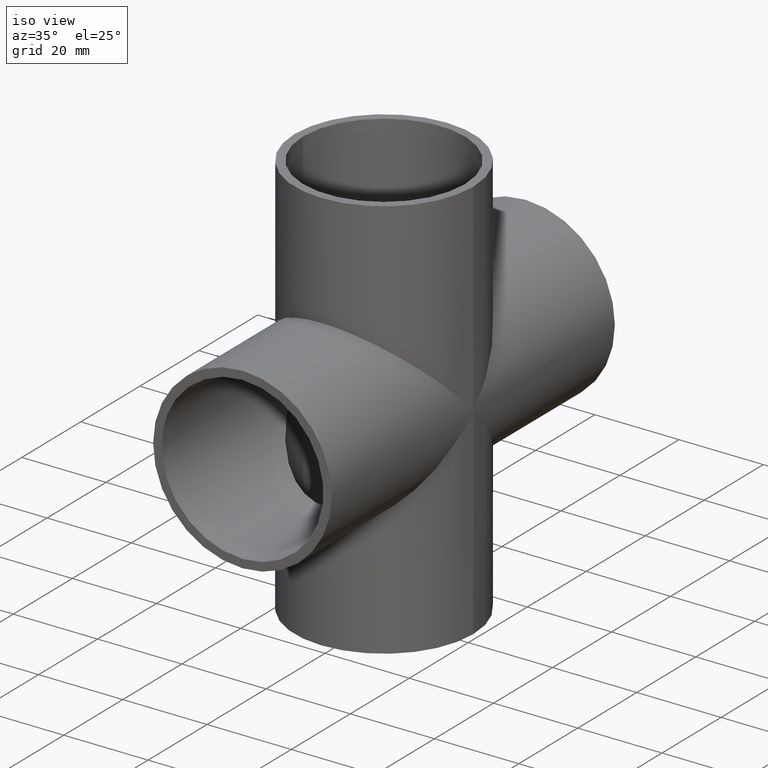
[diagram: clean part render]
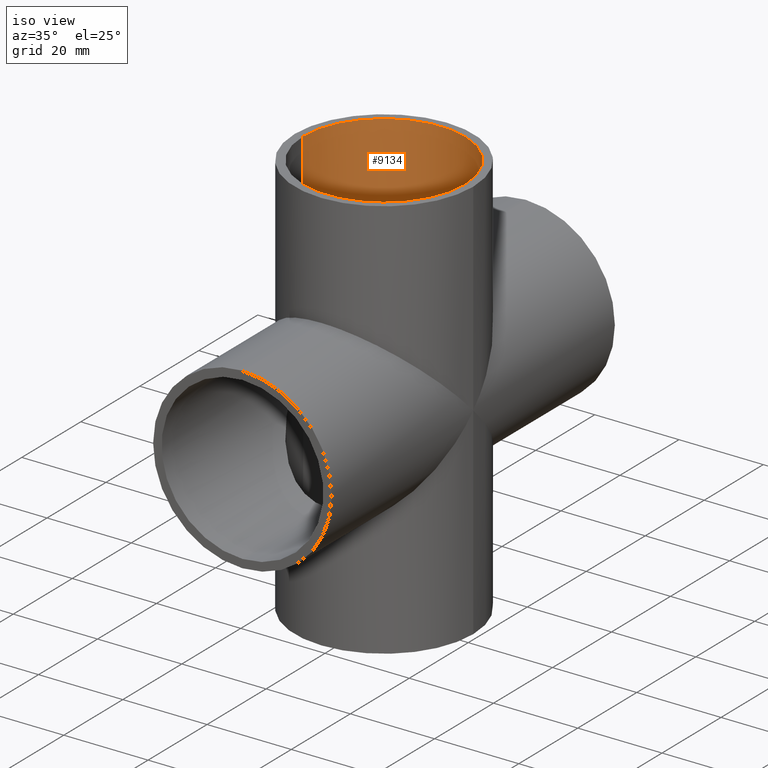
[diagram: same view with one face highlighted and labeled with its STEP entity id]
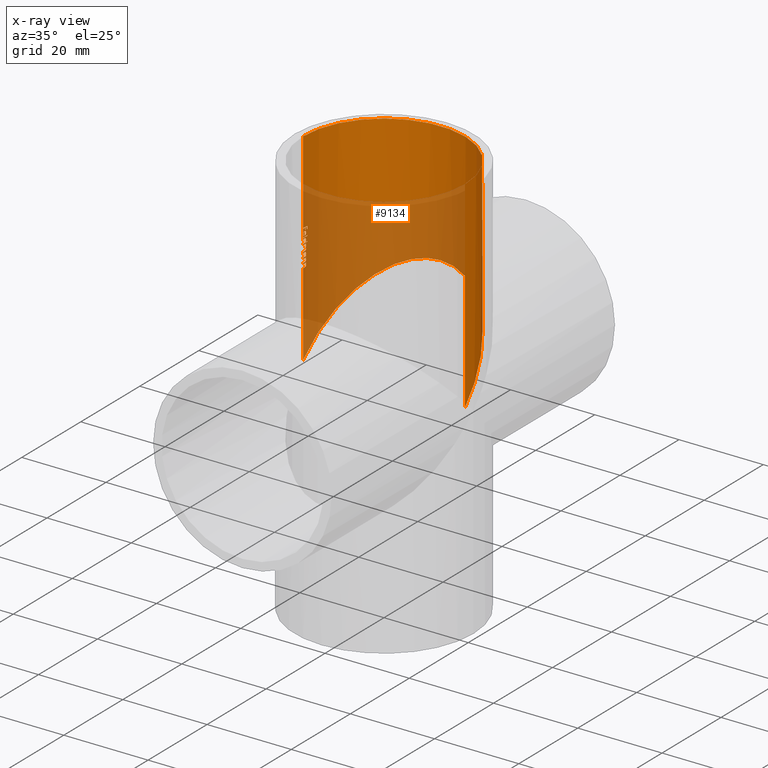
[diagram: x-ray of the same camera — body ghosted, the highlighted face saturated]
A machine part, iso view. The second image highlights one B-rep face of the part: STEP entity #9134.
The next image is the same camera in x-ray: the body ghosted, the highlighted face saturated — about 47% of this face is hidden behind the body in this view.
In plain terms, the highlighted cylindrical surface (partial cylindrical patch) has radius 19.2 mm, axis along (-0, -0, -1).
Its self-contained STEP definition (entity closure, byte-faithful):
#69 = EDGE_CURVE ( 'NONE', #5589, #10329, #8343, .T. ) ;
#75 = CARTESIAN_POINT ( 'NONE',  ( -19.19398095981593900, 0.4807233239850387500, 27.46841613247863000 ) ) ;
#90 = VERTEX_POINT ( 'NONE', #3073 ) ;
#100 = CARTESIAN_POINT ( 'NONE',  ( -19.17564602913302400, 0.9667467948717918300, 20.53158386752137000 ) ) ;
#101 = CARTESIAN_POINT ( 'NONE',  ( -19.18131942561808900, 0.8486190076266315600, 21.48716866407257300 ) ) ;
#102 = DIRECTION ( 'NONE',  ( 0.0000000000000000000, 0.0000000000000000000, -1.000000000000000000 ) ) ;
#148 = CARTESIAN_POINT ( 'NONE',  ( 0.0000000000000000000, 0.0000000000000000000, 28.16379540598290600 ) ) ;
#157 = CARTESIAN_POINT ( 'NONE',  ( -19.15437003644483500, 1.322916666666662500, 48.00000000000000000 ) ) ;
#168 = ORIENTED_EDGE ( 'NONE', *, *, #9417, .T. ) ;
#171 = ORIENTED_EDGE ( 'NONE', *, *, #1020, .T. ) ;
#185 = CARTESIAN_POINT ( 'NONE',  ( -19.17478344119876600, 0.9837072649572611300, 26.97921257345085200 ) ) ;
#192 = CARTESIAN_POINT ( 'NONE',  ( -19.17484931423937100, 0.9824232434468344000, 24.20143756821696400 ) ) ;
#222 = CARTESIAN_POINT ( 'NONE',  ( -19.17994611947535700, 0.8786544007092310600, 19.78107889792954700 ) ) ;
#235 = DIRECTION ( 'NONE',  ( -1.000000000000000000, 0.0000000000000000000, 0.0000000000000000000 ) ) ;
#237 = CARTESIAN_POINT ( 'NONE',  ( -19.18364268521869000, 0.7923719618055525800, 20.41286057692308000 ) ) ;
#285 = VECTOR ( 'NONE', #5434, 1000.000000000000000 ) ;
#295 = VERTEX_POINT ( 'NONE', #6557 ) ;
#312 = CARTESIAN_POINT ( 'NONE',  ( -19.20000000000001000, 5.641257428163769400E-012, 22.57039110364026500 ) ) ;
#315 = CARTESIAN_POINT ( 'NONE',  ( -19.18414232207631200, 0.7801816239316198300, 48.00000000000000000 ) ) ;
#347 = DIRECTION ( 'NONE',  ( 0.0000000000000000000, 0.0000000000000000000, 1.000000000000000000 ) ) ;
#378 = VERTEX_POINT ( 'NONE', #1194 ) ;
#395 = CARTESIAN_POINT ( 'NONE',  ( -19.20000000000000300, -3.813926322764602400E-015, 26.14549946581196600 ) ) ;
#412 = AXIS2_PLACEMENT_3D ( 'NONE', #3751, #102, #235 ) ;
#506 = CARTESIAN_POINT ( 'NONE',  ( -19.18201333537494700, 0.8313490264472228600, 27.33379690137237700 ) ) ;
#513 = CARTESIAN_POINT ( 'NONE',  ( -19.19657012052068300, 0.3654936578099098300, 27.34126457392806100 ) ) ;
#515 = CARTESIAN_POINT ( 'NONE',  ( 0.0000000000000000000, 0.0000000000000000000, 28.28251869658119600 ) ) ;
#525 = DIRECTION ( 'NONE',  ( -0.0000000000000000000, -0.0000000000000000000, -1.000000000000000000 ) ) ;
#526 = ORIENTED_EDGE ( 'NONE', *, *, #6788, .T. ) ;
#546 = CARTESIAN_POINT ( 'NONE',  ( -19.17929708643919500, 0.8917608502724849700, 25.11432408139426900 ) ) ;
#570 = CIRCLE ( 'NONE', #10062, 19.20000000000000300 ) ;
#577 = LINE ( 'NONE', #9546, #285 ) ;
#605 = DIRECTION ( 'NONE',  ( -0.0000000000000000000, -0.0000000000000000000, -1.000000000000000000 ) ) ;
#625 = VERTEX_POINT ( 'NONE', #1446 ) ;
#627 = CARTESIAN_POINT ( 'NONE',  ( -19.17491823840748200, 0.9810948003851766000, 23.45121714658954900 ) ) ;
#671 = CARTESIAN_POINT ( 'NONE',  ( -19.20000000000000300, -3.149485685826682700E-015, 20.80295138888889600 ) ) ;
#689 = EDGE_CURVE ( 'NONE', #378, #2402, #1402, .T. ) ;
#715 = ORIENTED_EDGE ( 'NONE', *, *, #5621, .T. ) ;
#747 = VERTEX_POINT ( 'NONE', #4439 ) ;
#776 = DIRECTION ( 'NONE',  ( 1.000000000000000000, 0.0000000000000000000, 0.0000000000000000000 ) ) ;
#799 = CIRCLE ( 'NONE', #6410, 19.20000000000000300 ) ;
#823 = ORIENTED_EDGE ( 'NONE', *, *, #2978, .T. ) ;
#825 =( BOUNDED_CURVE ( )  B_SPLINE_CURVE ( 3, ( #8399, #3498, #9217, #4318 ),
 .UNSPECIFIED., .F., .F. ) 
 B_SPLINE_CURVE_WITH_KNOTS ( ( 4, 4 ),
 ( 4.696487869601114100, 4.699372887525459700 ),
 .UNSPECIFIED. ) 
 CURVE ( )  GEOMETRIC_REPRESENTATION_ITEM ( )  RATIONAL_B_SPLINE_CURVE ( ( 1.000000000000000000, 0.9999993063894182500, 0.9999993063894182500, 1.000000000000000000 ) ) 
 REPRESENTATION_ITEM ( '' )  );
#855 = LINE ( 'NONE', #10579, #4979 ) ;
#858 = EDGE_CURVE ( 'NONE', #10623, #3435, #1792, .T. ) ;
#873 = CARTESIAN_POINT ( 'NONE',  ( -19.18008835921572300, 0.8746914267103339500, 23.92050340909648700 ) ) ;
#883 = CARTESIAN_POINT ( 'NONE',  ( -19.18586179294150900, 0.7391814209262883600, 22.87578640490830800 ) ) ;
#904 = CARTESIAN_POINT ( 'NONE',  ( -19.18763274153197800, 0.6913582900386160400, 26.52652725747877900 ) ) ;
#938 = CARTESIAN_POINT ( 'NONE',  ( -19.18533675111010000, 0.7502357939369621600, 23.85928109975961700 ) ) ;
#964 = ORIENTED_EDGE ( 'NONE', *, *, #5568, .T. ) ;
#974 = CARTESIAN_POINT ( 'NONE',  ( -19.19252239564421100, 0.5389598428807652600, 27.46684644243399400 ) ) ;
#981 = VERTEX_POINT ( 'NONE', #3989 ) ;
#983 = CARTESIAN_POINT ( 'NONE',  ( -19.20000000000000300, -4.113047199910087000E-015, 28.16379540598290600 ) ) ;
#989 = CARTESIAN_POINT ( 'NONE',  ( -19.18364268521869000, 0.7923719618055524700, 21.53225160256411300 ) ) ;
#995 = CIRCLE ( 'NONE', #6470, 19.20000000000000300 ) ;
#1017 = CARTESIAN_POINT ( 'NONE',  ( -19.19398095981593900, 0.4807233239850387500, 27.46841613247863000 ) ) ;
#1020 = EDGE_CURVE ( 'NONE', #8789, #2653, #995, .T. ) ;
#1029 = DIRECTION ( 'NONE',  ( 1.000000000000000000, 0.0000000000000000000, 0.0000000000000000000 ) ) ;
#1039 = DIRECTION ( 'NONE',  ( -1.000000000000000000, 0.0000000000000000000, 0.0000000000000000000 ) ) ;
#1077 = AXIS2_PLACEMENT_3D ( 'NONE', #148, #5910, #1029 ) ;
#1090 = CARTESIAN_POINT ( 'NONE',  ( -19.18641080897004200, 0.7245325593989798700, 19.70254407714189400 ) ) ;
#1102 = LINE ( 'NONE', #3780, #7134 ) ;
#1105 = EDGE_CURVE ( 'NONE', #90, #8789, #8973, .T. ) ;
#1110 = ORIENTED_EDGE ( 'NONE', *, *, #9067, .T. ) ;
#1194 = CARTESIAN_POINT ( 'NONE',  ( -19.19398095981593900, 0.4807233239850387500, 27.46841613247863000 ) ) ;
#1208 = FACE_OUTER_BOUND ( 'NONE', #10383, .T. ) ;
#1213 = VERTEX_POINT ( 'NONE', #100 ) ;
#1215 = CARTESIAN_POINT ( 'NONE',  ( -19.20000000000000300, -3.578552517797663700E-015, 24.61905715811965900 ) ) ;
#1225 = CIRCLE ( 'NONE', #5480, 19.20000000000000300 ) ;
#1227 = ORIENTED_EDGE ( 'NONE', *, *, #10268, .T. ) ;
#1251 = CARTESIAN_POINT ( 'NONE',  ( -19.19015064658027100, 0.6178997268573661600, 25.89604051514207900 ) ) ;
#1278 = CIRCLE ( 'NONE', #5890, 19.20000000000000300 ) ;
#1300 = DIRECTION ( 'NONE',  ( 0.0000000000000000000, 0.0000000000000000000, 1.000000000000000000 ) ) ;
#1304 = AXIS2_PLACEMENT_3D ( 'NONE', #1964, #7678, #2770 ) ;
#1368 = EDGE_CURVE ( 'NONE', #6500, #295, #7411, .T. ) ;
#1372 = CARTESIAN_POINT ( 'NONE',  ( -19.19854602219772500, 0.2386667017725856700, 27.28201286928023700 ) ) ;
#1376 = DIRECTION ( 'NONE',  ( -1.000000000000000000, 0.0000000000000000000, 0.0000000000000000000 ) ) ;
#1387 = CARTESIAN_POINT ( 'NONE',  ( -19.18359887183223100, 0.7934319911858933600, 26.58991678352029500 ) ) ;
#1402 = B_SPLINE_CURVE_WITH_KNOTS ( 'NONE', 3,
 ( #1017, #974, #2682, #2716, #2742, #2783 ),
 .UNSPECIFIED., .F., .F.,
 ( 4, 2, 4 ),
 ( 0.0000000000000000000, 0.0001746068969405105800, 0.0003492137938810211600 ),
 .UNSPECIFIED. ) ;
#1410 = VECTOR ( 'NONE', #3507, 1000.000000000000000 ) ;
#1411 = CARTESIAN_POINT ( 'NONE',  ( -19.18317971822252900, 0.8035022702991413400, 27.35711304754273200 ) ) ;
#1416 = CARTESIAN_POINT ( 'NONE',  ( -19.18292908958453000, 0.8100346907989838300, 25.03279400866050300 ) ) ;
#1446 = CARTESIAN_POINT ( 'NONE',  ( -19.19973031915712300, 0.1017628205128165300, 26.99696806557157900 ) ) ;
#1455 = DIRECTION ( 'NONE',  ( -0.0000000000000000000, -0.0000000000000000000, -1.000000000000000000 ) ) ;
#1459 = CARTESIAN_POINT ( 'NONE',  ( 19.20000000000000300, 0.0000000000000000000, -1.175660927181459000E-015 ) ) ;
#1487 = CARTESIAN_POINT ( 'NONE',  ( -19.20000000000000300, -4.113047199910087000E-015, 28.28251869658119600 ) ) ;
#1571 = CARTESIAN_POINT ( 'NONE',  ( 2.351321854362918100E-015, 19.19999999999999900, 19.20000000000000300 ) ) ;
#1587 = CARTESIAN_POINT ( 'NONE',  ( -19.20000000000000300, 0.0000000000000000000, 0.0000000000000000000 ) ) ;
#1600 = VERTEX_POINT ( 'NONE', #1459 ) ;
#1603 = VERTEX_POINT ( 'NONE', #2462 ) ;
#1629 = VECTOR ( 'NONE', #1455, 1000.000000000000000 ) ;
#1669 = CARTESIAN_POINT ( 'NONE',  ( -19.19956749393178400, 0.1360309189143729900, 26.60693602093235900 ) ) ;
#1717 = CARTESIAN_POINT ( 'NONE',  ( -19.18405532024657500, 0.7830050683947866700, 23.87108252213798900 ) ) ;
#1729 = CARTESIAN_POINT ( 'NONE',  ( -19.17963727890599700, 0.8852269688501261900, 22.74206940046019900 ) ) ;
#1733 = LINE ( 'NONE', #5087, #10432 ) ;
#1753 = CARTESIAN_POINT ( 'NONE',  ( -19.19311112539966000, 0.5177504503617899000, 26.48652366094409800 ) ) ;
#1762 = VECTOR ( 'NONE', #525, 1000.000000000000000 ) ;
#1792 = CIRCLE ( 'NONE', #412, 19.20000000000000300 ) ;
#1811 = CARTESIAN_POINT ( 'NONE',  ( -19.19285768066037100, 0.5236545138888854000, 23.17741720085470200 ) ) ;
#1831 = CARTESIAN_POINT ( 'NONE',  ( -19.17888845488442900, 0.9007515843816839000, 21.43565599551717300 ) ) ;
#1867 = CARTESIAN_POINT ( 'NONE',  ( -19.18005546911546900, 0.8759036801676222100, 23.77591549908749300 ) ) ;
#1888 = ORIENTED_EDGE ( 'NONE', *, *, #1105, .T. ) ;
#1908 = CARTESIAN_POINT ( 'NONE',  ( -19.17495299681140300, 0.9804281463315415200, 26.90404918984947000 ) ) ;
#1913 = ORIENTED_EDGE ( 'NONE', *, *, #5351, .T. ) ;
#1926 = CARTESIAN_POINT ( 'NONE',  ( -19.19973031915712300, 0.1017628205128165300, 26.99696806557157900 ) ) ;
#1932 = VERTEX_POINT ( 'NONE', #10112 ) ;
#1948 = EDGE_CURVE ( 'NONE', #2132, #2932, #3117, .T. ) ;
#1949 = CARTESIAN_POINT ( 'NONE',  ( -19.19215946495841900, 0.5517074943383499800, 19.68373087134198600 ) ) ;
#1951 = VERTEX_POINT ( 'NONE', #9873 ) ;
#1960 = CARTESIAN_POINT ( 'NONE',  ( -19.17645075549988200, 0.9507972272278654200, 20.22126630029491800 ) ) ;
#1964 = CARTESIAN_POINT ( 'NONE',  ( 0.0000000000000000000, 0.0000000000000000000, 22.04106570512820800 ) ) ;
#1967 = CARTESIAN_POINT ( 'NONE',  ( -19.20000000000000300, 0.0000000000000000000, 48.00000000000000000 ) ) ;
#1971 = DIRECTION ( 'NONE',  ( 0.0000000000000000000, 0.0000000000000000000, -1.000000000000000000 ) ) ;
#1991 = CARTESIAN_POINT ( 'NONE',  ( -19.17608163688280200, 0.9581594276815634800, 21.02231095752238900 ) ) ;
#2039 = DIRECTION ( 'NONE',  ( 0.0000000000000000000, 0.0000000000000000000, 1.000000000000000000 ) ) ;
#2062 = CIRCLE ( 'NONE', #6509, 19.20000000000000300 ) ;
#2067 = CARTESIAN_POINT ( 'NONE',  ( -19.19365133932174700, 0.4937086838942277300, 20.80295138888890000 ) ) ;
#2080 = CARTESIAN_POINT ( 'NONE',  ( -19.18365603291372800, 0.7933814641349658000, 25.80476839734717100 ) ) ;
#2105 = B_SPLINE_CURVE_WITH_KNOTS ( 'NONE', 3,
 ( #938, #10013, #1867, #7588, #2693, #8419, #3514, #9237 ),
 .UNSPECIFIED., .F., .F.,
 ( 4, 2, 2, 4 ),
 ( 0.0000000000000000000, 0.0002224030267045206300, 0.0003336045400567808600, 0.0004448060534090409800 ),
 .UNSPECIFIED. ) ;
#2127 = EDGE_CURVE ( 'NONE', #981, #3703, #7922, .T. ) ;
#2132 = VERTEX_POINT ( 'NONE', #2629 ) ;
#2155 = CARTESIAN_POINT ( 'NONE',  ( -19.17478344119876600, 0.9837072649572613500, 23.50470127203525900 ) ) ;
#2161 = EDGE_CURVE ( 'NONE', #747, #8556, #8187, .T. ) ;
#2182 = ORIENTED_EDGE ( 'NONE', *, *, #5338, .T. ) ;
#2208 = CARTESIAN_POINT ( 'NONE',  ( -19.19946455889160600, 0.1444467374134880100, 27.17724145442646800 ) ) ;
#2227 = B_SPLINE_CURVE_WITH_KNOTS ( 'NONE', 3,
 ( #6035, #6001, #9170, #6870, #1991, #7713, #2810, #8541, #3640, #9360, #4462, #10168 ),
 .UNSPECIFIED., .F., .F.,
 ( 4, 2, 2, 2, 2, 4 ),
 ( 3.529906531158615100E-018, 8.640291998078087700E-005, 0.0001728058399615583100, 0.0003456116799231131000, 0.0005184175198846679400, 0.0006912233598462227300 ),
 .UNSPECIFIED. ) ;
#2240 = CARTESIAN_POINT ( 'NONE',  ( -19.18414232207631200, 0.7801816239316198300, 28.16379540598290600 ) ) ;
#2278 = CARTESIAN_POINT ( 'NONE',  ( 0.0000000000000000000, 0.0000000000000000000, 48.00000000000000000 ) ) ;
#2280 = CARTESIAN_POINT ( 'NONE',  ( -19.20000000000000300, 0.02765559060466136700, 25.64411106895796900 ) ) ;
#2292 = CARTESIAN_POINT ( 'NONE',  ( -19.18081186079757600, 0.8584830111638911400, 27.30974562186146700 ) ) ;
#2301 = VERTEX_POINT ( 'NONE', #4961 ) ;
#2308 = CARTESIAN_POINT ( 'NONE',  ( -19.17553150931584600, 0.9690344638812719000, 23.39935703421959800 ) ) ;
#2310 = DIRECTION ( 'NONE',  ( -0.0000000000000000000, -0.0000000000000000000, -1.000000000000000000 ) ) ;
#2318 = DIRECTION ( 'NONE',  ( 0.0000000000000000000, 0.0000000000000000000, 1.000000000000000000 ) ) ;
#2343 = CARTESIAN_POINT ( 'NONE',  ( 0.0000000000000000000, 0.0000000000000000000, 24.50033386752137000 ) ) ;
#2346 = CARTESIAN_POINT ( 'NONE',  ( -19.20000000000001000, 5.641257428163769400E-012, 22.57039110364026500 ) ) ;
#2348 = DIRECTION ( 'NONE',  ( 1.000000000000000000, 0.0000000000000000000, 0.0000000000000000000 ) ) ;
#2371 = CARTESIAN_POINT ( 'NONE',  ( -19.17478344119876600, 0.9837072649572615700, 24.16695462740385000 ) ) ;
#2400 = ORIENTED_EDGE ( 'NONE', *, *, #9263, .T. ) ;
#2402 = VERTEX_POINT ( 'NONE', #3431 ) ;
#2408 = EDGE_CURVE ( 'NONE', #2301, #7932, #825, .T. ) ;
#2409 = CARTESIAN_POINT ( 'NONE',  ( -11.24709960243657600, 19.19999999999999900, 19.19999999999999900 ) ) ;
#2413 = CARTESIAN_POINT ( 'NONE',  ( 0.0000000000000000000, 0.0000000000000000000, 24.89042467948717200 ) ) ;
#2417 = VERTEX_POINT ( 'NONE', #5921 ) ;
#2462 = CARTESIAN_POINT ( 'NONE',  ( -19.18364268521869000, 0.7923719618055525800, 20.41286057692308000 ) ) ;
#2468 = CARTESIAN_POINT ( 'NONE',  ( -19.19453822443550800, 0.4579326923076882900, 48.00000000000000000 ) ) ;
#2469 = DIRECTION ( 'NONE',  ( 0.0000000000000000000, 0.0000000000000000000, 1.000000000000000000 ) ) ;
#2473 = EDGE_CURVE ( 'NONE', #8650, #5805, #8566, .T. ) ;
#2488 = CARTESIAN_POINT ( 'NONE',  ( -19.20000000000000600, 0.01693502988858046300, 26.77316274380614700 ) ) ;
#2500 = CARTESIAN_POINT ( 'NONE',  ( 0.0000000000000000000, 0.0000000000000000000, 25.00914797008546100 ) ) ;
#2545 = CARTESIAN_POINT ( 'NONE',  ( -19.18559840305645300, 0.7450873247704085100, 26.55449980969085600 ) ) ;
#2560 = CARTESIAN_POINT ( 'NONE',  ( -19.17539349372497900, 0.9720510782580452600, 22.56505011499381300 ) ) ;
#2586 = CARTESIAN_POINT ( 'NONE',  ( -19.19999169444420800, 0.03585386986498580900, 27.22349529276704800 ) ) ;
#2599 = EDGE_CURVE ( 'NONE', #8860, #3924, #9500, .T. ) ;
#2602 = VERTEX_POINT ( 'NONE', #4605 ) ;
#2603 = CARTESIAN_POINT ( 'NONE',  ( -19.16325854407207500, 1.187232905982901900, 27.63802083333333200 ) ) ;
#2613 = VERTEX_POINT ( 'NONE', #1487 ) ;
#2629 = CARTESIAN_POINT ( 'NONE',  ( -19.17478344119876600, 0.9837072649572618000, 22.43221654647436500 ) ) ;
#2648 = CARTESIAN_POINT ( 'NONE',  ( -19.17581840790930400, 0.9633569869084368500, 21.30634538083483800 ) ) ;
#2653 = VERTEX_POINT ( 'NONE', #3178 ) ;
#2655 = CARTESIAN_POINT ( 'NONE',  ( -19.17723576545226300, 0.9346809061164494900, 24.36624015090811900 ) ) ;
#2682 = CARTESIAN_POINT ( 'NONE',  ( -19.19078334214490400, 0.5973259039620887300, 27.45934071632487400 ) ) ;
#2693 = CARTESIAN_POINT ( 'NONE',  ( -19.17621620584497300, 0.9554380304028383700, 23.64988601757026000 ) ) ;
#2703 = VERTEX_POINT ( 'NONE', #6455 ) ;
#2716 = CARTESIAN_POINT ( 'NONE',  ( -19.18708759456646400, 0.7061396173024904200, 27.42196738193513300 ) ) ;
#2721 = CARTESIAN_POINT ( 'NONE',  ( -19.17634018314232900, 0.9530175018484894300, 26.79467769759953900 ) ) ;
#2732 = CARTESIAN_POINT ( 'NONE',  ( -19.19966045486826500, 0.1192450174478637500, 26.85327341483294100 ) ) ;
#2742 = CARTESIAN_POINT ( 'NONE',  ( -19.18513621778818000, 0.7567919072128159700, 27.39189904843363300 ) ) ;
#2763 = DIRECTION ( 'NONE',  ( -0.0000000000000000000, -0.0000000000000000000, -1.000000000000000000 ) ) ;
#2766 = CARTESIAN_POINT ( 'NONE',  ( -19.17498199079637900, 0.9798642507882759900, 20.11740613825928700 ) ) ;
#2770 = DIRECTION ( 'NONE',  ( -1.000000000000000000, 0.0000000000000000000, 0.0000000000000000000 ) ) ;
#2773 = DIRECTION ( 'NONE',  ( -0.0000000000000000000, -0.0000000000000000000, -1.000000000000000000 ) ) ;
#2783 = CARTESIAN_POINT ( 'NONE',  ( -19.18317971822252900, 0.8035022702991413400, 27.35711304754273200 ) ) ;
#2810 = CARTESIAN_POINT ( 'NONE',  ( -19.17994611947534600, 0.8786544007092193000, 20.90046992357057200 ) ) ;
#2814 = AXIS2_PLACEMENT_3D ( 'NONE', #3826, #9545, #4642 ) ;
#2840 = CARTESIAN_POINT ( 'NONE',  ( -19.20000000000000300, 0.0000000000000000000, 48.00000000000000000 ) ) ;
#2846 = CARTESIAN_POINT ( 'NONE',  ( -19.18337892477720200, 0.7987321380876032400, 24.50033386752137000 ) ) ;
#2872 = CARTESIAN_POINT ( 'NONE',  ( 0.0000000000000000000, 0.0000000000000000000, 21.92234241452991800 ) ) ;
#2900 = CARTESIAN_POINT ( 'NONE',  ( -19.17780922296081800, 0.9231643112968980200, 25.65416907175941200 ) ) ;
#2915 = CARTESIAN_POINT ( 'NONE',  ( -19.18337892477720200, 0.7987321380876032400, 24.50033386752137000 ) ) ;
#2932 = VERTEX_POINT ( 'NONE', #5859 ) ;
#2945 = VECTOR ( 'NONE', #7953, 1000.000000000000000 ) ;
#2965 = AXIS2_PLACEMENT_3D ( 'NONE', #4562, #10278, #5379 ) ;
#2978 = EDGE_CURVE ( 'NONE', #8148, #4766, #10335, .T. ) ;
#2990 = EDGE_CURVE ( 'NONE', #5795, #3091, #2227, .T. ) ;
#3025 = CARTESIAN_POINT ( 'NONE',  ( -19.17484255225415200, 0.9825550505472336900, 25.36190616863724800 ) ) ;
#3028 = CARTESIAN_POINT ( 'NONE',  ( -19.19972447353231400, 0.1028657225284570200, 27.04391591093313000 ) ) ;
#3073 = CARTESIAN_POINT ( 'NONE',  ( -19.19999999999999600, -1.042100929237821300E-013, 26.83878693399578100 ) ) ;
#3091 = VERTEX_POINT ( 'NONE', #2067 ) ;
#3117 = B_SPLINE_CURVE_WITH_KNOTS ( 'NONE', 3,
 ( #9933, #9902, #9927, #9834, #9748, #9674, #9650, #9436, #9371, #9322 ),
 .UNSPECIFIED., .F., .F.,
 ( 4, 2, 2, 2, 4 ),
 ( 0.0000000000000000000, 0.0001140655059364532300, 0.0002281310118729064500, 0.0003421965178093597000, 0.0004562620237458129100 ),
 .UNSPECIFIED. ) ;
#3121 = CARTESIAN_POINT ( 'NONE',  ( -19.17775450670325200, 0.9241038708290628700, 27.22300473857760400 ) ) ;
#3123 = ORIENTED_EDGE ( 'NONE', *, *, #9950, .T. ) ;
#3131 = CARTESIAN_POINT ( 'NONE',  ( -19.17790819461547300, 0.9211317282306624700, 23.30330005403535800 ) ) ;
#3155 = CYLINDRICAL_SURFACE ( 'NONE', #3374, 19.20000000000000300 ) ;
#3156 = B_SPLINE_CURVE_WITH_KNOTS ( 'NONE', 3,
 ( #3348, #8241, #9883, #4980, #10673, #5771, #873, #6592, #1717, #7448 ),
 .UNSPECIFIED., .F., .F.,
 ( 4, 2, 2, 2, 4 ),
 ( 3.529906531158615100E-018, 0.0001033047177057026900, 0.0002066094354114018500, 0.0003099141531171010300, 0.0004132188708228001800 ),
 .UNSPECIFIED. ) ;
#3166 = DIRECTION ( 'NONE',  ( 1.000000000000000000, 0.0000000000000000000, 0.0000000000000000000 ) ) ;
#3173 = VECTOR ( 'NONE', #2310, 1000.000000000000000 ) ;
#3178 = CARTESIAN_POINT ( 'NONE',  ( -19.15199706841746500, 1.356837606837602900, 26.26422275641025900 ) ) ;
#3185 = ORIENTED_EDGE ( 'NONE', *, *, #6167, .T. ) ;
#3197 = EDGE_CURVE ( 'NONE', #1213, #10346, #1102, .T. ) ;
#3220 = VERTEX_POINT ( 'NONE', #7882 ) ;
#3232 = ORIENTED_EDGE ( 'NONE', *, *, #10246, .T. ) ;
#3248 = EDGE_CURVE ( 'NONE', #4199, #5109, #577, .T. ) ;
#3254 = DIRECTION ( 'NONE',  ( 1.000000000000000000, 0.0000000000000000000, 0.0000000000000000000 ) ) ;
#3261 = DIRECTION ( 'NONE',  ( 0.0000000000000000000, 0.0000000000000000000, -1.000000000000000000 ) ) ;
#3316 = ORIENTED_EDGE ( 'NONE', *, *, #9253, .T. ) ;
#3340 = LINE ( 'NONE', #8345, #9348 ) ;
#3348 = CARTESIAN_POINT ( 'NONE',  ( -19.17478344119876600, 0.9837072649572615700, 24.16695462740385000 ) ) ;
#3374 = AXIS2_PLACEMENT_3D ( 'NONE', #8477, #9243, #3529 ) ;
#3375 = EDGE_CURVE ( 'NONE', #625, #2301, #6726, .T. ) ;
#3390 = CARTESIAN_POINT ( 'NONE',  ( -19.17478344119876600, 0.9837072649572618000, 22.43221654647436500 ) ) ;
#3417 = CARTESIAN_POINT ( 'NONE',  ( -19.19955031889455900, 0.1383604962817212600, 27.34488515899002100 ) ) ;
#3423 = ORIENTED_EDGE ( 'NONE', *, *, #4780, .T. ) ;
#3431 = CARTESIAN_POINT ( 'NONE',  ( -19.18317971822252900, 0.8035022702991413400, 27.35711304754273200 ) ) ;
#3435 = VERTEX_POINT ( 'NONE', #5233 ) ;
#3438 = EDGE_CURVE ( 'NONE', #6358, #2602, #10190, .T. ) ;
#3487 = CARTESIAN_POINT ( 'NONE',  ( -19.17484345826000700, 0.9825373903482560500, 21.20063560299790600 ) ) ;
#3498 = CARTESIAN_POINT ( 'NONE',  ( -19.19786632369534700, 0.2868266746533640900, 26.60590630552242400 ) ) ;
#3507 = DIRECTION ( 'NONE',  ( -0.0000000000000000000, -0.0000000000000000000, -1.000000000000000000 ) ) ;
#3514 = CARTESIAN_POINT ( 'NONE',  ( -19.17485912098422000, 0.9822320867730027800, 23.54225563187209100 ) ) ;
#3518 = CARTESIAN_POINT ( 'NONE',  ( -19.17723576545226300, 0.9346809061164494900, 24.36624015090811900 ) ) ;
#3529 = DIRECTION ( 'NONE',  ( -1.000000000000000000, 0.0000000000000000000, 0.0000000000000000000 ) ) ;
#3551 = CARTESIAN_POINT ( 'NONE',  ( -19.17894368794824800, 0.8992784758848350000, 26.69564006138059800 ) ) ;
#3570 = CARTESIAN_POINT ( 'NONE',  ( -19.19904561423817300, 0.1932616286209378500, 26.73032381859932400 ) ) ;
#3585 = ORIENTED_EDGE ( 'NONE', *, *, #2473, .T. ) ;
#3608 = CARTESIAN_POINT ( 'NONE',  ( -19.17478344119876600, 0.9837072649572622400, 20.04503038194445000 ) ) ;
#3618 = B_SPLINE_CURVE_WITH_KNOTS ( 'NONE', 3,
 ( #8147, #4169, #5779, #883, #6604, #1729, #7455, #2560, #8283, #3390 ),
 .UNSPECIFIED., .F., .F.,
 ( 4, 2, 2, 2, 4 ),
 ( 0.0000000000000000000, 0.0001965144070733310300, 0.0003930288141466620500, 0.0005895432212199930500, 0.0007860576282933241100 ),
 .UNSPECIFIED. ) ;
#3640 = CARTESIAN_POINT ( 'NONE',  ( -19.18641080897002400, 0.7245325593989654400, 20.82193510278289800 ) ) ;
#3664 = DIRECTION ( 'NONE',  ( -0.0000000000000000000, -0.0000000000000000000, -1.000000000000000000 ) ) ;
#3703 = VERTEX_POINT ( 'NONE', #3966 ) ;
#3707 = VECTOR ( 'NONE', #605, 1000.000000000000000 ) ;
#3710 = DIRECTION ( 'NONE',  ( 1.000000000000000000, 0.0000000000000000000, 0.0000000000000000000 ) ) ;
#3743 = CARTESIAN_POINT ( 'NONE',  ( -19.17488091921699200, 0.9818071876107139500, 25.46664859887943100 ) ) ;
#3748 = EDGE_CURVE ( 'NONE', #6725, #3220, #10325, .T. ) ;
#3751 = CARTESIAN_POINT ( 'NONE',  ( 0.0000000000000000000, 0.0000000000000000000, 21.65097489316240200 ) ) ;
#3753 = CARTESIAN_POINT ( 'NONE',  ( -19.18229832192307100, 0.8246852868710310400, 24.48145747690706700 ) ) ;
#3780 = CARTESIAN_POINT ( 'NONE',  ( -19.17564602913302400, 0.9667467948717918300, 48.00000000000000000 ) ) ;
#3822 = CARTESIAN_POINT ( 'NONE',  ( -19.19565169433770200, 0.4112608976129316100, 27.34756063994255700 ) ) ;
#3826 = CARTESIAN_POINT ( 'NONE',  ( 0.0000000000000000000, 0.0000000000000000000, 27.63802083333333200 ) ) ;
#3898 = EDGE_CURVE ( 'NONE', #295, #378, #5931, .T. ) ;
#3924 = VERTEX_POINT ( 'NONE', #9586 ) ;
#3928 = CARTESIAN_POINT ( 'NONE',  ( -19.17564602913302400, 0.9667467948717914900, 21.92234241452991800 ) ) ;
#3933 = CARTESIAN_POINT ( 'NONE',  ( -19.19814059874277100, 0.2721461800968381600, 25.86599133052048700 ) ) ;
#3940 = CIRCLE ( 'NONE', #6683, 19.20000000000000300 ) ;
#3942 = CARTESIAN_POINT ( 'NONE',  ( -19.17567218640840900, 0.9662547233295100100, 27.12269683863140600 ) ) ;
#3954 = ORIENTED_EDGE ( 'NONE', *, *, #2599, .T. ) ;
#3957 = CARTESIAN_POINT ( 'NONE',  ( -19.18380288931402300, 0.7898619642274896700, 23.20833768946540600 ) ) ;
#3961 = LINE ( 'NONE', #4565, #1762 ) ;
#3966 = CARTESIAN_POINT ( 'NONE',  ( -19.15199706841746500, 1.356837606837603100, 25.00914797008546100 ) ) ;
#3982 = ORIENTED_EDGE ( 'NONE', *, *, #2408, .T. ) ;
#3989 = CARTESIAN_POINT ( 'NONE',  ( -19.18416386940560200, 0.7796516092414491600, 25.00914797008546100 ) ) ;
#3992 = ORIENTED_EDGE ( 'NONE', *, *, #3438, .T. ) ;
#4003 = CARTESIAN_POINT ( 'NONE',  ( -19.19875339142795700, 0.2229566889455890900, 22.87125851632217900 ) ) ;
#4025 = B_SPLINE_CURVE_WITH_KNOTS ( 'NONE', 3,
 ( #989, #101, #1831, #7562, #2648, #8386, #3487, #9201 ),
 .UNSPECIFIED., .F., .F.,
 ( 4, 2, 2, 4 ),
 ( 0.0000000000000000000, 0.0002159860422635843800, 0.0003239790633953764700, 0.0004319720845271685000 ),
 .UNSPECIFIED. ) ;
#4050 = EDGE_CURVE ( 'NONE', #5428, #6242, #2062, .T. ) ;
#4076 = VERTEX_POINT ( 'NONE', #1215 ) ;
#4096 = ORIENTED_EDGE ( 'NONE', *, *, #7398, .T. ) ;
#4097 = CARTESIAN_POINT ( 'NONE',  ( -19.19365133932174700, 0.4937086838942278400, 19.68356036324786700 ) ) ;
#4105 = CIRCLE ( 'NONE', #5926, 19.20000000000000300 ) ;
#4117 = VERTEX_POINT ( 'NONE', #4596 ) ;
#4169 = CARTESIAN_POINT ( 'NONE',  ( -19.19217338492052200, 0.5521362775187320700, 22.93810758423294500 ) ) ;
#4181 = EDGE_CURVE ( 'NONE', #5109, #5086, #7076, .T. ) ;
#4199 = VERTEX_POINT ( 'NONE', #7234 ) ;
#4220 = EDGE_CURVE ( 'NONE', #6747, #747, #5156, .T. ) ;
#4230 = ORIENTED_EDGE ( 'NONE', *, *, #9538, .T. ) ;
#4237 = CARTESIAN_POINT ( 'NONE',  ( 19.20000000000000300, 0.0000000000000000000, -1.175660927181459000E-015 ) ) ;
#4240 = CARTESIAN_POINT ( 'NONE',  ( -19.19811791028410800, 0.2734683767943068000, 27.42879726275764100 ) ) ;
#4311 = DIRECTION ( 'NONE',  ( -0.0000000000000000000, -0.0000000000000000000, -1.000000000000000000 ) ) ;
#4314 = DIRECTION ( 'NONE',  ( 0.0000000000000000000, 0.0000000000000000000, 1.000000000000000000 ) ) ;
#4318 = CARTESIAN_POINT ( 'NONE',  ( -19.19837360369815100, 0.2499019264155942800, 26.53559027777777500 ) ) ;
#4379 = CARTESIAN_POINT ( 'NONE',  ( -19.17556388483538000, 0.9683952342487151000, 19.93077639002055100 ) ) ;
#4381 = CARTESIAN_POINT ( 'NONE',  ( -19.18238579575870900, 0.8227617447805036800, 26.61371498681781800 ) ) ;
#4394 = CARTESIAN_POINT ( 'NONE',  ( -19.19804772569419500, 0.2754195024011714700, 26.66110912373964600 ) ) ;
#4426 = CARTESIAN_POINT ( 'NONE',  ( 0.0000000000000000000, 0.0000000000000000000, 21.53225160256411300 ) ) ;
#4439 = CARTESIAN_POINT ( 'NONE',  ( -19.19453822443550800, 0.4579326923076882900, 26.48470886752136600 ) ) ;
#4462 = CARTESIAN_POINT ( 'NONE',  ( -19.19215946495842200, 0.5517074943383458700, 20.80312189698301900 ) ) ;
#4467 = AXIS2_PLACEMENT_3D ( 'NONE', #515, #6254, #1376 ) ;
#4484 = B_SPLINE_CURVE_WITH_KNOTS ( 'NONE', 3,
 ( #1411, #506, #2292, #8006, #3121, #8850, #3942, #9669, #4770, #10460 ),
 .UNSPECIFIED., .F., .F.,
 ( 4, 2, 2, 2, 4 ),
 ( 0.0000000000000000000, 0.0001087331967155521000, 0.0002174663934311041900, 0.0003261995901466563100, 0.0004349327868622082700 ),
 .UNSPECIFIED. ) ;
#4489 = ORIENTED_EDGE ( 'NONE', *, *, #3375, .T. ) ;
#4519 = CARTESIAN_POINT ( 'NONE',  ( -19.19217338492052200, 0.5521362775187249600, 25.90618984919020600 ) ) ;
#4537 = EDGE_CURVE ( 'NONE', #1951, #2132, #3618, .T. ) ;
#4554 = DIRECTION ( 'NONE',  ( 0.0000000000000000000, 0.0000000000000000000, 1.000000000000000000 ) ) ;
#4556 = CARTESIAN_POINT ( 'NONE',  ( -19.17906741346022400, 0.8966110932255456600, 24.41756994218225800 ) ) ;
#4562 = CARTESIAN_POINT ( 'NONE',  ( 0.0000000000000000000, 0.0000000000000000000, 20.41286057692308000 ) ) ;
#4565 = CARTESIAN_POINT ( 'NONE',  ( -19.20000000000000300, 0.0000000000000000000, 48.00000000000000000 ) ) ;
#4578 = CIRCLE ( 'NONE', #2965, 19.20000000000000300 ) ;
#4586 = B_SPLINE_CURVE_WITH_KNOTS ( 'NONE', 3,
 ( #8765, #3025, #9580, #4672, #10390, #5474, #546, #6283, #1416, #7123 ),
 .UNSPECIFIED., .F., .F.,
 ( 4, 2, 2, 2, 4 ),
 ( 0.0000000000000000000, 0.0001141258629324533900, 0.0002282517258649066800, 0.0003423775887973600400, 0.0004565034517298133600 ),
 .UNSPECIFIED. ) ;
#4589 = AXIS2_PLACEMENT_3D ( 'NONE', #4426, #10137, #5234 ) ;
#4594 = VECTOR ( 'NONE', #4311, 1000.000000000000000 ) ;
#4596 = CARTESIAN_POINT ( 'NONE',  ( -19.17478344119876600, 0.9837072649572622400, 20.04503038194445000 ) ) ;
#4601 = DIRECTION ( 'NONE',  ( -0.0000000000000000000, -0.0000000000000000000, -1.000000000000000000 ) ) ;
#4605 = CARTESIAN_POINT ( 'NONE',  ( -19.18414232207631200, 0.7801816239316198300, 27.63802083333333200 ) ) ;
#4640 = CARTESIAN_POINT ( 'NONE',  ( -19.19453822443550800, 0.4579326923076882900, 27.34969284188033700 ) ) ;
#4642 = DIRECTION ( 'NONE',  ( 1.000000000000000000, 0.0000000000000000000, 0.0000000000000000000 ) ) ;
#4651 = CARTESIAN_POINT ( 'NONE',  ( -19.15199706841746500, 1.356837606837603100, 24.89042467948717200 ) ) ;
#4672 = CARTESIAN_POINT ( 'NONE',  ( -19.17585201111578600, 0.9626915969740625900, 25.24952422578335000 ) ) ;
#4733 = VERTEX_POINT ( 'NONE', #5286 ) ;
#4737 = AXIS2_PLACEMENT_3D ( 'NONE', #6846, #1971, #7691 ) ;
#4738 = VECTOR ( 'NONE', #5745, 1000.000000000000000 ) ;
#4754 = CARTESIAN_POINT ( 'NONE',  ( -19.19524303556431400, 0.4309108433344794900, 25.90656490918571100 ) ) ;
#4766 = VERTEX_POINT ( 'NONE', #2603 ) ;
#4770 = CARTESIAN_POINT ( 'NONE',  ( -19.17484055862975000, 0.9825939110064869600, 27.01563424710522900 ) ) ;
#4778 = CARTESIAN_POINT ( 'NONE',  ( -19.18970374314069000, 0.6309383902623330000, 23.17956663078914300 ) ) ;
#4780 = EDGE_CURVE ( 'NONE', #4733, #4863, #3340, .T. ) ;
#4804 = B_SPLINE_CURVE_WITH_KNOTS ( 'NONE', 3,
 ( #2915, #3753, #9464, #4556, #10274, #5376 ),
 .UNSPECIFIED., .F., .F.,
 ( 4, 2, 4 ),
 ( 0.0000000000000000000, 9.631986885335873700E-005, 0.0001926397377067174700 ),
 .UNSPECIFIED. ) ;
#4809 = CARTESIAN_POINT ( 'NONE',  ( -19.19639920239649900, 0.3753979950236369100, 22.93203177472369000 ) ) ;
#4819 = ORIENTED_EDGE ( 'NONE', *, *, #8372, .T. ) ;
#4849 = ORIENTED_EDGE ( 'NONE', *, *, #6081, .T. ) ;
#4852 = ORIENTED_EDGE ( 'NONE', *, *, #7268, .T. ) ;
#4863 = VERTEX_POINT ( 'NONE', #8657 ) ;
#4930 = VERTEX_POINT ( 'NONE', #7069 ) ;
#4961 = CARTESIAN_POINT ( 'NONE',  ( -19.19757273603232100, 0.3052884615384575700, 26.64106320112179600 ) ) ;
#4979 = VECTOR ( 'NONE', #9785, 1000.000000000000000 ) ;
#4980 = CARTESIAN_POINT ( 'NONE',  ( -19.17612049211766100, 0.9573491012851917900, 24.03175784214760200 ) ) ;
#4983 = CARTESIAN_POINT ( 'NONE',  ( -19.19999999999999600, 7.946855276085083700E-012, 27.12338389103490900 ) ) ;
#5009 = CARTESIAN_POINT ( 'NONE',  ( -19.20000000000000300, 0.0000000000000000000, 48.00000000000000000 ) ) ;
#5016 = CARTESIAN_POINT ( 'NONE',  ( -19.19999999999999200, 0.01317691335188269300, 27.17406884529758000 ) ) ;
#5041 = CARTESIAN_POINT ( 'NONE',  ( -19.19531770757143700, 0.4273506048200333400, 27.46689746901542500 ) ) ;
#5045 = CARTESIAN_POINT ( 'NONE',  ( -19.16325854407207500, 1.187232905982901900, 48.00000000000000000 ) ) ;
#5062 = DIRECTION ( 'NONE',  ( -0.0000000000000000000, -0.0000000000000000000, -1.000000000000000000 ) ) ;
#5086 = VERTEX_POINT ( 'NONE', #1571 ) ;
#5087 = CARTESIAN_POINT ( 'NONE',  ( -19.15199706841746500, 1.356837606837602900, 48.00000000000000000 ) ) ;
#5098 = EDGE_CURVE ( 'NONE', #10071, #1213, #1278, .T. ) ;
#5109 = VERTEX_POINT ( 'NONE', #8117 ) ;
#5115 = CARTESIAN_POINT ( 'NONE',  ( -19.20000000000000300, -3.813926322764602400E-015, 26.26422275641025900 ) ) ;
#5134 = CARTESIAN_POINT ( 'NONE',  ( -19.17478344119876600, 0.9837072649572622400, 20.04503038194445000 ) ) ;
#5140 = CARTESIAN_POINT ( 'NONE',  ( -19.17499265076401100, 0.9796554948602750300, 24.23574618013243100 ) ) ;
#5149 = CARTESIAN_POINT ( 'NONE',  ( -19.19972290650516200, 0.1031613756818337000, 26.92485914476218800 ) ) ;
#5156 = B_SPLINE_CURVE_WITH_KNOTS ( 'NONE', 3,
 ( #9908, #2545, #904, #6631, #1753, #7478 ),
 .UNSPECIFIED., .F., .F.,
 ( 4, 2, 4 ),
 ( 0.0000000000000000000, 0.0001794265085171753900, 0.0003588530170343507800 ),
 .UNSPECIFIED. ) ;
#5158 = DIRECTION ( 'NONE',  ( 0.0000000000000000000, 0.0000000000000000000, -1.000000000000000000 ) ) ;
#5167 = CARTESIAN_POINT ( 'NONE',  ( -19.17804270526213300, 0.9183592587521541800, 19.82607042123767700 ) ) ;
#5204 = CARTESIAN_POINT ( 'NONE',  ( 0.0000000000000000000, 0.0000000000000000000, 26.26422275641025900 ) ) ;
#5207 = VERTEX_POINT ( 'NONE', #8227 ) ;
#5233 = CARTESIAN_POINT ( 'NONE',  ( -19.17564602913302400, 0.9667467948717917100, 21.65097489316240200 ) ) ;
#5234 = DIRECTION ( 'NONE',  ( 1.000000000000000000, 0.0000000000000000000, 0.0000000000000000000 ) ) ;
#5279 = DIRECTION ( 'NONE',  ( 0.0000000000000000000, 0.0000000000000000000, -1.000000000000000000 ) ) ;
#5284 = CARTESIAN_POINT ( 'NONE',  ( 0.0000000000000000000, 0.0000000000000000000, 19.68356036324786400 ) ) ;
#5286 = CARTESIAN_POINT ( 'NONE',  ( -19.17564602913302400, 0.9667467948717912700, 24.61905715811965900 ) ) ;
#5302 = VERTEX_POINT ( 'NONE', #312 ) ;
#5306 = CIRCLE ( 'NONE', #4467, 19.20000000000000300 ) ;
#5314 = VECTOR ( 'NONE', #2773, 1000.000000000000000 ) ;
#5317 = DIRECTION ( 'NONE',  ( -1.000000000000000000, 0.0000000000000000000, 0.0000000000000000000 ) ) ;
#5334 = CARTESIAN_POINT ( 'NONE',  ( -19.20000000000000300, -2.987666194911911600E-015, 20.53158386752137000 ) ) ;
#5338 = EDGE_CURVE ( 'NONE', #10295, #2417, #4105, .T. ) ;
#5351 = EDGE_CURVE ( 'NONE', #9698, #10061, #5975, .T. ) ;
#5376 = CARTESIAN_POINT ( 'NONE',  ( -19.17723576545226300, 0.9346809061164494900, 24.36624015090811900 ) ) ;
#5379 = DIRECTION ( 'NONE',  ( 1.000000000000000000, 0.0000000000000000000, 0.0000000000000000000 ) ) ;
#5387 = CARTESIAN_POINT ( 'NONE',  ( -19.17478344119876600, 0.9837072649572613500, 23.50470127203525900 ) ) ;
#5397 = EDGE_CURVE ( 'NONE', #8556, #625, #5799, .T. ) ;
#5428 = VERTEX_POINT ( 'NONE', #3928 ) ;
#5434 = DIRECTION ( 'NONE',  ( -0.0000000000000000000, -0.0000000000000000000, -1.000000000000000000 ) ) ;
#5474 = CARTESIAN_POINT ( 'NONE',  ( -19.17825913485808100, 0.9136152417726309800, 25.14550895245994500 ) ) ;
#5480 = AXIS2_PLACEMENT_3D ( 'NONE', #2343, #8068, #3166 ) ;
#5483 = EDGE_CURVE ( 'NONE', #5302, #1951, #8879, .T. ) ;
#5538 = ORIENTED_EDGE ( 'NONE', *, *, #7159, .T. ) ;
#5568 = EDGE_CURVE ( 'NONE', #6778, #6335, #855, .T. ) ;
#5571 = CARTESIAN_POINT ( 'NONE',  ( -19.19285768066037100, 0.5236545138888854000, 23.17741720085470200 ) ) ;
#5574 = B_SPLINE_CURVE_WITH_KNOTS ( 'NONE', 3,
 ( #237, #10098, #6831, #1960, #7672, #2766, #8504, #3608 ),
 .UNSPECIFIED., .F., .F.,
 ( 4, 2, 2, 4 ),
 ( 0.0000000000000000000, 0.0002159860422635904000, 0.0003239790633953855800, 0.0004319720845271808000 ),
 .UNSPECIFIED. ) ;
#5575 = CARTESIAN_POINT ( 'NONE',  ( -19.20000000000000300, 0.0000000000000000000, 48.00000000000000000 ) ) ;
#5589 = VERTEX_POINT ( 'NONE', #9005 ) ;
#5617 = CARTESIAN_POINT ( 'NONE',  ( -19.19384748261138200, 0.4860234708867488500, 22.93997061965812300 ) ) ;
#5621 = EDGE_CURVE ( 'NONE', #2417, #5302, #7158, .T. ) ;
#5640 = EDGE_CURVE ( 'NONE', #6417, #5207, #3156, .T. ) ;
#5647 = CARTESIAN_POINT ( 'NONE',  ( 2.351321854362918100E-015, 19.19999999999999900, 19.20000000000000300 ) ) ;
#5680 = ORIENTED_EDGE ( 'NONE', *, *, #7920, .T. ) ;
#5689 = DIRECTION ( 'NONE',  ( 0.0000000000000000000, 0.0000000000000000000, 1.000000000000000000 ) ) ;
#5693 = EDGE_CURVE ( 'NONE', #10470, #6747, #9960, .T. ) ;
#5716 = DIRECTION ( 'NONE',  ( 0.0000000000000000000, 0.0000000000000000000, 1.000000000000000000 ) ) ;
#5721 = ORIENTED_EDGE ( 'NONE', *, *, #7122, .T. ) ;
#5737 = ORIENTED_EDGE ( 'NONE', *, *, #9459, .T. ) ;
#5745 = DIRECTION ( 'NONE',  ( -0.0000000000000000000, -0.0000000000000000000, -1.000000000000000000 ) ) ;
#5771 = CARTESIAN_POINT ( 'NONE',  ( -19.17886528093081100, 0.9008588400849655300, 23.94380399466811200 ) ) ;
#5779 = CARTESIAN_POINT ( 'NONE',  ( -19.19015064658027100, 0.6178997268573797100, 22.92795825018481900 ) ) ;
#5795 = VERTEX_POINT ( 'NONE', #7898 ) ;
#5799 = B_SPLINE_CURVE_WITH_KNOTS ( 'NONE', 3,
 ( #4640, #3822, #513, #6251, #1372, #7089, #2208, #7925, #3028, #8767 ),
 .UNSPECIFIED., .F., .F.,
 ( 4, 2, 2, 2, 4 ),
 ( 0.0000000000000000000, 0.0001381999027418644500, 0.0002763998054837289000, 0.0004145997082255933800, 0.0005527996109674578100 ),
 .UNSPECIFIED. ) ;
#5805 = VERTEX_POINT ( 'NONE', #9559 ) ;
#5827 = ORIENTED_EDGE ( 'NONE', *, *, #6346, .T. ) ;
#5832 = EDGE_CURVE ( 'NONE', #8181, #10071, #9971, .T. ) ;
#5859 = CARTESIAN_POINT ( 'NONE',  ( -19.18382823753517000, 0.7878668369390992000, 22.04106570512820800 ) ) ;
#5883 =( BOUNDED_CURVE ( )  B_SPLINE_CURVE ( 3, ( #5647, #7482, #9127, #4237 ),
 .UNSPECIFIED., .F., .T. ) 
 B_SPLINE_CURVE_WITH_KNOTS ( ( 4, 4 ),
 ( 3.141592653589793100, 4.712388980384689700 ),
 .UNSPECIFIED. ) 
 CURVE ( )  GEOMETRIC_REPRESENTATION_ITEM ( )  RATIONAL_B_SPLINE_CURVE ( ( 1.000000000000000000, 0.8047378541243649400, 0.8047378541243649400, 1.000000000000000000 ) ) 
 REPRESENTATION_ITEM ( '' )  );
#5890 = AXIS2_PLACEMENT_3D ( 'NONE', #8151, #3261, #8987 ) ;
#5892 = DIRECTION ( 'NONE',  ( -0.0000000000000000000, -0.0000000000000000000, -1.000000000000000000 ) ) ;
#5910 = DIRECTION ( 'NONE',  ( 0.0000000000000000000, 0.0000000000000000000, 1.000000000000000000 ) ) ;
#5911 = CARTESIAN_POINT ( 'NONE',  ( -19.17564602913302400, 0.9667467948717918300, 20.41286057692308000 ) ) ;
#5921 = CARTESIAN_POINT ( 'NONE',  ( -19.20000000000000300, -3.578552517797663700E-015, 23.17741720085470200 ) ) ;
#5926 = AXIS2_PLACEMENT_3D ( 'NONE', #9462, #4554, #10272 ) ;
#5931 = B_SPLINE_CURVE_WITH_KNOTS ( 'NONE', 3,
 ( #4983, #5016, #2586, #8315, #3417, #9128, #4240, #9945, #5041, #75 ),
 .UNSPECIFIED., .F., .F.,
 ( 4, 2, 2, 2, 4 ),
 ( 0.0001419623447880335300, 0.0002986980199583755700, 0.0004554336951287176000, 0.0006121693702990597300, 0.0007689050454694017500 ),
 .UNSPECIFIED. ) ;
#5938 = ORIENTED_EDGE ( 'NONE', *, *, #9395, .T. ) ;
#5947 = LINE ( 'NONE', #9591, #1629 ) ;
#5951 = CARTESIAN_POINT ( 'NONE',  ( -19.17478344119876600, 0.9837072649572615700, 24.16695462740385000 ) ) ;
#5975 = CIRCLE ( 'NONE', #7052, 19.20000000000000300 ) ;
#5980 = CARTESIAN_POINT ( 'NONE',  ( -19.18415246927004600, 0.7814478470527666000, 19.71866154220162000 ) ) ;
#6001 = CARTESIAN_POINT ( 'NONE',  ( -19.17483836553091700, 0.9826366596948061800, 21.13538602004983600 ) ) ;
#6015 = CARTESIAN_POINT ( 'NONE',  ( -19.19837360369815100, 0.2499019264155942800, 26.53559027777777500 ) ) ;
#6035 = CARTESIAN_POINT ( 'NONE',  ( -19.17478344119876600, 0.9837072649572620200, 21.16442140758548300 ) ) ;
#6081 = EDGE_CURVE ( 'NONE', #9966, #8148, #7012, .T. ) ;
#6094 = DIRECTION ( 'NONE',  ( 1.000000000000000000, 0.0000000000000000000, 0.0000000000000000000 ) ) ;
#6099 = CARTESIAN_POINT ( 'NONE',  ( -19.20000000000000300, -3.330919660488696700E-015, 21.92234241452991800 ) ) ;
#6116 = ORIENTED_EDGE ( 'NONE', *, *, #5397, .T. ) ;
#6160 = CARTESIAN_POINT ( 'NONE',  ( 0.0000000000000000000, 0.0000000000000000000, 26.14549946581196600 ) ) ;
#6167 = EDGE_CURVE ( 'NONE', #10061, #8860, #6484, .T. ) ;
#6221 = ORIENTED_EDGE ( 'NONE', *, *, #10615, .T. ) ;
#6238 = CARTESIAN_POINT ( 'NONE',  ( -19.19999999999999600, 5.655758420462526200E-012, 25.53847336859757900 ) ) ;
#6242 = VERTEX_POINT ( 'NONE', #6099 ) ;
#6251 = CARTESIAN_POINT ( 'NONE',  ( -19.19802843342166600, 0.2785574904754149500, 27.30756091314221800 ) ) ;
#6254 = DIRECTION ( 'NONE',  ( 0.0000000000000000000, 0.0000000000000000000, -1.000000000000000000 ) ) ;
#6278 = CARTESIAN_POINT ( 'NONE',  ( -19.15199706841746500, 1.356837606837602900, 26.14549946581196600 ) ) ;
#6283 = CARTESIAN_POINT ( 'NONE',  ( -19.18163880233511200, 0.8398851116229010300, 25.05703590754644900 ) ) ;
#6292 = CARTESIAN_POINT ( 'NONE',  ( -19.18917982885847500, 0.6444978632478590700, 27.63802083333333200 ) ) ;
#6324 = ORIENTED_EDGE ( 'NONE', *, *, #4181, .T. ) ;
#6328 = CARTESIAN_POINT ( 'NONE',  ( -19.20000000000000300, 0.0000000000000000000, 48.00000000000000000 ) ) ;
#6335 = VERTEX_POINT ( 'NONE', #7923 ) ;
#6346 = EDGE_CURVE ( 'NONE', #2703, #981, #4586, .T. ) ;
#6358 = VERTEX_POINT ( 'NONE', #2240 ) ;
#6385 = CARTESIAN_POINT ( 'NONE',  ( 19.20000000000000300, 2.351321854362918100E-015, 48.00000000000000000 ) ) ;
#6410 = AXIS2_PLACEMENT_3D ( 'NONE', #7358, #2469, #8203 ) ;
#6417 = VERTEX_POINT ( 'NONE', #2371 ) ;
#6455 = CARTESIAN_POINT ( 'NONE',  ( -19.17478344119876600, 0.9837072649572613500, 25.40029881143161800 ) ) ;
#6470 = AXIS2_PLACEMENT_3D ( 'NONE', #5204, #5279, #5317 ) ;
#6484 = LINE ( 'NONE', #6828, #8441 ) ;
#6500 = VERTEX_POINT ( 'NONE', #983 ) ;
#6509 = AXIS2_PLACEMENT_3D ( 'NONE', #2872, #8613, #3710 ) ;
#6521 = EDGE_CURVE ( 'NONE', #4117, #7470, #10604, .T. ) ;
#6557 = CARTESIAN_POINT ( 'NONE',  ( -19.19999999999999600, 7.946855276085083700E-012, 27.12338389103490900 ) ) ;
#6592 = CARTESIAN_POINT ( 'NONE',  ( -19.18269184806113600, 0.8156028577758310800, 23.88411479372953700 ) ) ;
#6604 = CARTESIAN_POINT ( 'NONE',  ( -19.18365603291372400, 0.7933814641349631300, 22.83668613238989300 ) ) ;
#6631 = CARTESIAN_POINT ( 'NONE',  ( -19.19138753760749700, 0.5778156197943923300, 26.49272879012233500 ) ) ;
#6683 = AXIS2_PLACEMENT_3D ( 'NONE', #10597, #5689, #776 ) ;
#6722 = EDGE_CURVE ( 'NONE', #6242, #10623, #3961, .T. ) ;
#6725 = VERTEX_POINT ( 'NONE', #4651 ) ;
#6726 = B_SPLINE_CURVE_WITH_KNOTS ( 'NONE', 3,
 ( #1926, #5149, #2732, #8479, #3570, #9280, #4394, #10101 ),
 .UNSPECIFIED., .F., .F.,
 ( 4, 2, 2, 4 ),
 ( 0.0000000000000000000, 0.0002138367609510362200, 0.0003207551414265543700, 0.0004276735219020723400 ),
 .UNSPECIFIED. ) ;
#6747 = VERTEX_POINT ( 'NONE', #1387 ) ;
#6778 = VERTEX_POINT ( 'NONE', #6292 ) ;
#6788 = EDGE_CURVE ( 'NONE', #1932, #5428, #10207, .T. ) ;
#6816 = CARTESIAN_POINT ( 'NONE',  ( -19.19040676653311600, 0.6095861671591426000, 19.68571468878150200 ) ) ;
#6828 = CARTESIAN_POINT ( 'NONE',  ( -19.20000000000000300, 0.0000000000000000000, 48.00000000000000000 ) ) ;
#6831 = CARTESIAN_POINT ( 'NONE',  ( -19.17888845488440500, 0.9007515843816980000, 20.31626496987613400 ) ) ;
#6838 = ORIENTED_EDGE ( 'NONE', *, *, #3248, .T. ) ;
#6846 = CARTESIAN_POINT ( 'NONE',  ( 0.0000000000000000000, 0.0000000000000000000, 24.61905715811965900 ) ) ;
#6870 = CARTESIAN_POINT ( 'NONE',  ( -19.17556388483537000, 0.9683952342487164300, 21.05016741566156900 ) ) ;
#6911 = DIRECTION ( 'NONE',  ( -0.0000000000000000000, -0.0000000000000000000, -1.000000000000000000 ) ) ;
#6918 = ORIENTED_EDGE ( 'NONE', *, *, #9779, .T. ) ;
#6929 = ORIENTED_EDGE ( 'NONE', *, *, #1948, .T. ) ;
#6959 = CARTESIAN_POINT ( 'NONE',  ( -19.18586179294150900, 0.7391814209262693700, 25.84386866986556100 ) ) ;
#6964 = AXIS2_PLACEMENT_3D ( 'NONE', #2500, #5158, #1039 ) ;
#6996 = CIRCLE ( 'NONE', #1304, 19.20000000000000300 ) ;
#7012 = LINE ( 'NONE', #157, #4594 ) ;
#7016 = DIRECTION ( 'NONE',  ( 1.000000000000000000, 0.0000000000000000000, 0.0000000000000000000 ) ) ;
#7052 = AXIS2_PLACEMENT_3D ( 'NONE', #6160, #1300, #7016 ) ;
#7069 = CARTESIAN_POINT ( 'NONE',  ( -19.16325854407207500, 1.187232905982901900, 28.16379540598290600 ) ) ;
#7076 =( BOUNDED_CURVE ( )  B_SPLINE_CURVE ( 3, ( #1587, #7313, #2409, #8134 ),
 .UNSPECIFIED., .F., .F. ) 
 B_SPLINE_CURVE_WITH_KNOTS ( ( 4, 4 ),
 ( 1.570796326794896600, 3.141592653589793100 ),
 .UNSPECIFIED. ) 
 CURVE ( )  GEOMETRIC_REPRESENTATION_ITEM ( )  RATIONAL_B_SPLINE_CURVE ( ( 1.000000000000000000, 0.8047378541243649400, 0.8047378541243649400, 1.000000000000000000 ) ) 
 REPRESENTATION_ITEM ( '' )  );
#7089 = CARTESIAN_POINT ( 'NONE',  ( -19.19926434697537900, 0.1714050639255441100, 27.21628229074099500 ) ) ;
#7117 = ORIENTED_EDGE ( 'NONE', *, *, #10349, .T. ) ;
#7122 = EDGE_CURVE ( 'NONE', #4930, #6358, #8425, .T. ) ;
#7123 = CARTESIAN_POINT ( 'NONE',  ( -19.18416386940560200, 0.7796516092414491600, 25.00914797008546100 ) ) ;
#7134 = VECTOR ( 'NONE', #4601, 1000.000000000000000 ) ;
#7137 = CARTESIAN_POINT ( 'NONE',  ( -19.17564602913302400, 0.9667467948717914900, 48.00000000000000000 ) ) ;
#7140 = B_SPLINE_CURVE_WITH_KNOTS ( 'NONE', 3,
 ( #3518, #8424, #10043, #5140, #192, #5951 ),
 .UNSPECIFIED., .F., .F.,
 ( 4, 2, 4 ),
 ( 0.0000000000000000000, 0.0001038405955627232100, 0.0002076811911254463400 ),
 .UNSPECIFIED. ) ;
#7141 = VERTEX_POINT ( 'NONE', #2655 ) ;
#7158 = LINE ( 'NONE', #10620, #4738 ) ;
#7159 = EDGE_CURVE ( 'NONE', #7141, #6417, #7140, .T. ) ;
#7168 = ORIENTED_EDGE ( 'NONE', *, *, #2161, .T. ) ;
#7177 = CARTESIAN_POINT ( 'NONE',  ( -19.19996061127519800, 0.09422529134470795900, 25.73809431015926600 ) ) ;
#7231 = DIRECTION ( 'NONE',  ( -0.0000000000000000000, -0.0000000000000000000, -1.000000000000000000 ) ) ;
#7234 = CARTESIAN_POINT ( 'NONE',  ( -19.20000000000000300, -2.987666194911911600E-015, 19.68356036324786400 ) ) ;
#7235 = CARTESIAN_POINT ( 'NONE',  ( -19.19999999999999600, 0.02765559060462758800, 22.67602880400068000 ) ) ;
#7247 = LINE ( 'NONE', #1967, #5314 ) ;
#7263 = ORIENTED_EDGE ( 'NONE', *, *, #2127, .T. ) ;
#7268 = EDGE_CURVE ( 'NONE', #3435, #8650, #9830, .T. ) ;
#7313 = CARTESIAN_POINT ( 'NONE',  ( -19.19999999999999900, 11.24709960243657200, 11.24709960243657200 ) ) ;
#7358 = CARTESIAN_POINT ( 'NONE',  ( 0.0000000000000000000, 0.0000000000000000000, 28.16379540598290600 ) ) ;
#7377 = CARTESIAN_POINT ( 'NONE',  ( -19.19998701815603300, 0.04893738430256364800, 26.71159902286084500 ) ) ;
#7398 = EDGE_CURVE ( 'NONE', #8082, #10295, #8263, .T. ) ;
#7405 = ORIENTED_EDGE ( 'NONE', *, *, #1368, .T. ) ;
#7411 = LINE ( 'NONE', #5009, #1410 ) ;
#7448 = CARTESIAN_POINT ( 'NONE',  ( -19.18533675111010000, 0.7502357939369621600, 23.85928109975961700 ) ) ;
#7455 = CARTESIAN_POINT ( 'NONE',  ( -19.17780922296081400, 0.9231643112969110100, 22.68608680680215200 ) ) ;
#7470 = VERTEX_POINT ( 'NONE', #4097 ) ;
#7478 = CARTESIAN_POINT ( 'NONE',  ( -19.19453822443550800, 0.4579326923076882900, 26.48470886752136600 ) ) ;
#7482 = CARTESIAN_POINT ( 'NONE',  ( 11.24709960243657200, 19.19999999999999900, 19.19999999999999900 ) ) ;
#7510 = VECTOR ( 'NONE', #7231, 1000.000000000000000 ) ;
#7562 = CARTESIAN_POINT ( 'NONE',  ( -19.17645075549987900, 0.9507972272278690800, 21.34065732593596100 ) ) ;
#7588 = CARTESIAN_POINT ( 'NONE',  ( -19.17706969096345300, 0.9383132908309642600, 23.68382846244058700 ) ) ;
#7608 = ORIENTED_EDGE ( 'NONE', *, *, #6521, .T. ) ;
#7618 = CARTESIAN_POINT ( 'NONE',  ( -19.17574929809242000, 0.9647282709414226600, 26.83012794343860500 ) ) ;
#7653 = CARTESIAN_POINT ( 'NONE',  ( -19.19365133932174700, 0.4937086838942278400, 19.68356036324786700 ) ) ;
#7665 = ORIENTED_EDGE ( 'NONE', *, *, #858, .T. ) ;
#7672 = CARTESIAN_POINT ( 'NONE',  ( -19.17581840790930100, 0.9633569869084376300, 20.18695435519379800 ) ) ;
#7678 = DIRECTION ( 'NONE',  ( 0.0000000000000000000, 0.0000000000000000000, -1.000000000000000000 ) ) ;
#7691 = DIRECTION ( 'NONE',  ( -1.000000000000000000, 0.0000000000000000000, 0.0000000000000000000 ) ) ;
#7711 = ORIENTED_EDGE ( 'NONE', *, *, #10574, .T. ) ;
#7713 = CARTESIAN_POINT ( 'NONE',  ( -19.17804270526214000, 0.9183592587521555200, 20.94546144687868500 ) ) ;
#7806 = CARTESIAN_POINT ( 'NONE',  ( -19.17963727890600000, 0.8852269688501014400, 25.71015166541745600 ) ) ;
#7882 = CARTESIAN_POINT ( 'NONE',  ( -19.20000000000000300, -3.759986492459679000E-015, 24.89042467948717200 ) ) ;
#7898 = CARTESIAN_POINT ( 'NONE',  ( -19.17478344119876600, 0.9837072649572620200, 21.16442140758548300 ) ) ;
#7920 = EDGE_CURVE ( 'NONE', #4076, #4733, #9818, .T. ) ;
#7922 = CIRCLE ( 'NONE', #6964, 19.20000000000000300 ) ;
#7923 = CARTESIAN_POINT ( 'NONE',  ( -19.18917982885847500, 0.6444978632478590700, 28.16379540598290600 ) ) ;
#7925 = CARTESIAN_POINT ( 'NONE',  ( -19.19969530631791300, 0.1095643766827903700, 27.09077470947081400 ) ) ;
#7932 = VERTEX_POINT ( 'NONE', #6015 ) ;
#7934 = ORIENTED_EDGE ( 'NONE', *, *, #3898, .T. ) ;
#7953 = DIRECTION ( 'NONE',  ( -0.0000000000000000000, -0.0000000000000000000, -1.000000000000000000 ) ) ;
#7972 = DIRECTION ( 'NONE',  ( -0.0000000000000000000, -0.0000000000000000000, -1.000000000000000000 ) ) ;
#7984 = CARTESIAN_POINT ( 'NONE',  ( -19.20000000000000300, 0.0000000000000000000, 48.00000000000000000 ) ) ;
#7996 = CARTESIAN_POINT ( 'NONE',  ( -19.19999999999999600, 5.655758420462526200E-012, 25.53847336859757900 ) ) ;
#8006 = CARTESIAN_POINT ( 'NONE',  ( -19.17868427612105700, 0.9047685652347617900, 27.25337986620979400 ) ) ;
#8021 = CARTESIAN_POINT ( 'NONE',  ( -19.17602815660024600, 0.9592214200787593200, 23.37378886333345200 ) ) ;
#8068 = DIRECTION ( 'NONE',  ( 0.0000000000000000000, 0.0000000000000000000, 1.000000000000000000 ) ) ;
#8082 = VERTEX_POINT ( 'NONE', #5387 ) ;
#8117 = CARTESIAN_POINT ( 'NONE',  ( -19.20000000000000300, 0.0000000000000000000, 0.0000000000000000000 ) ) ;
#8134 = CARTESIAN_POINT ( 'NONE',  ( 2.351321854362918100E-015, 19.19999999999999900, 19.20000000000000300 ) ) ;
#8140 = DIRECTION ( 'NONE',  ( 0.0000000000000000000, 0.0000000000000000000, 1.000000000000000000 ) ) ;
#8147 = CARTESIAN_POINT ( 'NONE',  ( -19.19384748261138200, 0.4860234708867488500, 22.93997061965812300 ) ) ;
#8148 = VERTEX_POINT ( 'NONE', #10461 ) ;
#8151 = CARTESIAN_POINT ( 'NONE',  ( 0.0000000000000000000, 0.0000000000000000000, 20.53158386752137000 ) ) ;
#8181 = VERTEX_POINT ( 'NONE', #671 ) ;
#8187 = LINE ( 'NONE', #2468, #9842 ) ;
#8193 = ORIENTED_EDGE ( 'NONE', *, *, #689, .T. ) ;
#8203 = DIRECTION ( 'NONE',  ( 1.000000000000000000, 0.0000000000000000000, 0.0000000000000000000 ) ) ;
#8222 = CARTESIAN_POINT ( 'NONE',  ( -19.19999999999999600, -1.042100929237821300E-013, 26.83878693399578100 ) ) ;
#8227 = CARTESIAN_POINT ( 'NONE',  ( -19.18533675111010000, 0.7502357939369621600, 23.85928109975961700 ) ) ;
#8241 = CARTESIAN_POINT ( 'NONE',  ( -19.17484383591792600, 0.9825300289012742800, 24.13216206047755500 ) ) ;
#8263 = B_SPLINE_CURVE_WITH_KNOTS ( 'NONE', 3,
 ( #2155, #9501, #627, #2308, #8021, #3131, #8866, #3957, #9681, #4778, #10473, #5571 ),
 .UNSPECIFIED., .F., .F.,
 ( 4, 2, 2, 2, 2, 4 ),
 ( 0.0000000000000000000, 7.973342251324546400E-005, 0.0001594668450264909300, 0.0003189336900529822900, 0.0004784005350794736000, 0.0006378673801059650100 ),
 .UNSPECIFIED. ) ;
#8264 = EDGE_CURVE ( 'NONE', #3091, #8181, #3940, .T. ) ;
#8283 = CARTESIAN_POINT ( 'NONE',  ( -19.17488091921697100, 0.9818071876107141700, 22.49856633392217000 ) ) ;
#8315 = CARTESIAN_POINT ( 'NONE',  ( -19.19977489805707900, 0.09803280393793278900, 27.30889917431009600 ) ) ;
#8321 = ORIENTED_EDGE ( 'NONE', *, *, #4220, .T. ) ;
#8335 = CARTESIAN_POINT ( 'NONE',  ( -19.15437003644483500, 1.322916666666662500, 28.28251869658119600 ) ) ;
#8343 = CIRCLE ( 'NONE', #8799, 19.20000000000000300 ) ;
#8345 = CARTESIAN_POINT ( 'NONE',  ( -19.17564602913302400, 0.9667467948717912700, 48.00000000000000000 ) ) ;
#8372 = EDGE_CURVE ( 'NONE', #3220, #4076, #7247, .T. ) ;
#8386 = CARTESIAN_POINT ( 'NONE',  ( -19.17498199079638600, 0.9798642507882748800, 21.23679716390032400 ) ) ;
#8387 = ORIENTED_EDGE ( 'NONE', *, *, #4537, .T. ) ;
#8399 = CARTESIAN_POINT ( 'NONE',  ( -19.19757273603232100, 0.3052884615384575700, 26.64106320112179600 ) ) ;
#8419 = CARTESIAN_POINT ( 'NONE',  ( -19.17506880359777500, 0.9781953693117726400, 23.57934825753440900 ) ) ;
#8424 = CARTESIAN_POINT ( 'NONE',  ( -19.17650832873961200, 0.9496060268200121600, 24.33500677282845400 ) ) ;
#8425 = CIRCLE ( 'NONE', #1077, 19.20000000000000300 ) ;
#8441 = VECTOR ( 'NONE', #2763, 1000.000000000000000 ) ;
#8458 = CARTESIAN_POINT ( 'NONE',  ( -19.17483836553091300, 0.9826366596948061800, 20.01599499440880700 ) ) ;
#8460 = CARTESIAN_POINT ( 'NONE',  ( -19.17792917901217500, 0.9204876877080949700, 26.72741083484881800 ) ) ;
#8477 = CARTESIAN_POINT ( 'NONE',  ( 0.0000000000000000000, 0.0000000000000000000, 48.00000000000000000 ) ) ;
#8479 = CARTESIAN_POINT ( 'NONE',  ( -19.19924805024426500, 0.1707909373954804600, 26.75925613304776400 ) ) ;
#8504 = CARTESIAN_POINT ( 'NONE',  ( -19.17484345826000700, 0.9825373903482567100, 20.08124457735688000 ) ) ;
#8526 = ORIENTED_EDGE ( 'NONE', *, *, #9145, .T. ) ;
#8541 = CARTESIAN_POINT ( 'NONE',  ( -19.18415246927003200, 0.7814478470527520500, 20.83805256784264200 ) ) ;
#8556 = VERTEX_POINT ( 'NONE', #8741 ) ;
#8566 = CIRCLE ( 'NONE', #4589, 19.20000000000000300 ) ;
#8613 = DIRECTION ( 'NONE',  ( 0.0000000000000000000, 0.0000000000000000000, 1.000000000000000000 ) ) ;
#8634 = CARTESIAN_POINT ( 'NONE',  ( -19.17539349372499300, 0.9720510782580482600, 25.53313237995107300 ) ) ;
#8650 = VERTEX_POINT ( 'NONE', #9790 ) ;
#8657 = CARTESIAN_POINT ( 'NONE',  ( -19.17564602913302400, 0.9667467948717912700, 24.50033386752137000 ) ) ;
#8684 = ORIENTED_EDGE ( 'NONE', *, *, #10162, .T. ) ;
#8714 = ORIENTED_EDGE ( 'NONE', *, *, #6722, .T. ) ;
#8741 = CARTESIAN_POINT ( 'NONE',  ( -19.19453822443550800, 0.4579326923076882900, 27.34969284188033700 ) ) ;
#8765 = CARTESIAN_POINT ( 'NONE',  ( -19.17478344119876600, 0.9837072649572613500, 25.40029881143161800 ) ) ;
#8767 = CARTESIAN_POINT ( 'NONE',  ( -19.19973031915712300, 0.1017628205128165300, 26.99696806557157900 ) ) ;
#8789 = VERTEX_POINT ( 'NONE', #5115 ) ;
#8799 = AXIS2_PLACEMENT_3D ( 'NONE', #2278, #2318, #2348 ) ;
#8836 = CARTESIAN_POINT ( 'NONE',  ( -19.19875339142795700, 0.2229566889456138800, 25.83934078127945000 ) ) ;
#8838 = CARTESIAN_POINT ( 'NONE',  ( -19.19914045230726200, 0.1909898311530015800, 26.56880259465712500 ) ) ;
#8845 = ORIENTED_EDGE ( 'NONE', *, *, #5640, .T. ) ;
#8850 = CARTESIAN_POINT ( 'NONE',  ( -19.17625154333977400, 0.9547840750751455100, 27.15768721750900000 ) ) ;
#8860 = VERTEX_POINT ( 'NONE', #6238 ) ;
#8866 = CARTESIAN_POINT ( 'NONE',  ( -19.17973916909891600, 0.8830518806496959700, 23.26330368264777000 ) ) ;
#8879 = B_SPLINE_CURVE_WITH_KNOTS ( 'NONE', 3,
 ( #2346, #7235, #8901, #4003, #9724, #4809, #10516, #5617 ),
 .UNSPECIFIED., .F., .F.,
 ( 4, 2, 2, 4 ),
 ( 0.0001354148047845315700, 0.0004617008170172484500, 0.0006248438231336036300, 0.0007879868292499588100 ),
 .UNSPECIFIED. ) ;
#8890 = EDGE_CURVE ( 'NONE', #2402, #10470, #4484, .T. ) ;
#8901 = CARTESIAN_POINT ( 'NONE',  ( -19.19996061127520500, 0.09422529134468121700, 22.77001204520198000 ) ) ;
#8947 = B_SPLINE_CURVE_WITH_KNOTS ( 'NONE', 3,
 ( #10228, #4519, #1251, #6959, #2080, #7806, #2900, #8634, #3743, #9448 ),
 .UNSPECIFIED., .F., .F.,
 ( 4, 2, 2, 2, 4 ),
 ( 0.0000000000000000000, 0.0001965144070733095300, 0.0003930288141466190600, 0.0005895432212199285400, 0.0007860576282932381300 ),
 .UNSPECIFIED. ) ;
#8973 = LINE ( 'NONE', #7984, #2945 ) ;
#8987 = DIRECTION ( 'NONE',  ( -1.000000000000000000, 0.0000000000000000000, 0.0000000000000000000 ) ) ;
#9005 = CARTESIAN_POINT ( 'NONE',  ( 19.20000000000000300, 2.351321854362918100E-015, 48.00000000000000000 ) ) ;
#9008 = CARTESIAN_POINT ( 'NONE',  ( -19.19837360369815100, 0.2499019264155942800, 26.53559027777777500 ) ) ;
#9067 = EDGE_CURVE ( 'NONE', #2653, #9698, #1733, .T. ) ;
#9127 = CARTESIAN_POINT ( 'NONE',  ( 19.19999999999999600, 11.24709960243657700, 11.24709960243657700 ) ) ;
#9128 = CARTESIAN_POINT ( 'NONE',  ( -19.19873064257343700, 0.2249839741120334400, 27.40508704455156800 ) ) ;
#9134 = ADVANCED_FACE ( 'NONE', ( #1208 ), #3155, .F. ) ;
#9145 = EDGE_CURVE ( 'NONE', #1603, #4117, #5574, .T. ) ;
#9150 = ORIENTED_EDGE ( 'NONE', *, *, #10091, .T. ) ;
#9170 = CARTESIAN_POINT ( 'NONE',  ( -19.17492472412060400, 0.9809696506144517400, 21.10645270804052500 ) ) ;
#9179 = VERTEX_POINT ( 'NONE', #2846 ) ;
#9182 = ORIENTED_EDGE ( 'NONE', *, *, #5693, .T. ) ;
#9201 = CARTESIAN_POINT ( 'NONE',  ( -19.17478344119876600, 0.9837072649572620200, 21.16442140758548300 ) ) ;
#9209 = EDGE_CURVE ( 'NONE', #9179, #7141, #4804, .T. ) ;
#9214 = CARTESIAN_POINT ( 'NONE',  ( 0.0000000000000000000, 0.0000000000000000000, 27.63802083333333200 ) ) ;
#9217 = CARTESIAN_POINT ( 'NONE',  ( -19.19813327976912400, 0.2683644834735043300, 26.57074864002202500 ) ) ;
#9237 = CARTESIAN_POINT ( 'NONE',  ( -19.17478344119876600, 0.9837072649572613500, 23.50470127203525900 ) ) ;
#9243 = DIRECTION ( 'NONE',  ( -0.0000000000000000000, -0.0000000000000000000, -1.000000000000000000 ) ) ;
#9252 = B_SPLINE_CURVE_WITH_KNOTS ( 'NONE', 3,
 ( #9008, #8838, #1669, #7377, #2488, #8222 ),
 .UNSPECIFIED., .F., .F.,
 ( 4, 2, 4 ),
 ( 1.626303258728256700E-018, 0.0002001833421795645700, 0.0004003666843591275100 ),
 .UNSPECIFIED. ) ;
#9253 = EDGE_CURVE ( 'NONE', #2602, #6778, #9690, .T. ) ;
#9263 = EDGE_CURVE ( 'NONE', #2613, #9966, #5306, .T. ) ;
#9264 = CARTESIAN_POINT ( 'NONE',  ( -19.17492472412061500, 0.9809696506144562900, 19.98706168239951400 ) ) ;
#9265 = CARTESIAN_POINT ( 'NONE',  ( -19.18114440204388400, 0.8510477017301052400, 26.63862023813086600 ) ) ;
#9280 = CARTESIAN_POINT ( 'NONE',  ( -19.19843883790870700, 0.2462696525640542000, 26.68231586621162100 ) ) ;
#9322 = CARTESIAN_POINT ( 'NONE',  ( -19.18382823753517000, 0.7878668369390992000, 22.04106570512820800 ) ) ;
#9341 = AXIS2_PLACEMENT_3D ( 'NONE', #9214, #4314, #10021 ) ;
#9348 = VECTOR ( 'NONE', #5062, 1000.000000000000000 ) ;
#9360 = CARTESIAN_POINT ( 'NONE',  ( -19.19040676653309400, 0.6095861671591325000, 20.80510571442254500 ) ) ;
#9368 = ORIENTED_EDGE ( 'NONE', *, *, #10607, .F. ) ;
#9371 = CARTESIAN_POINT ( 'NONE',  ( -19.18258549027505200, 0.8181265824479487800, 22.06443287383885000 ) ) ;
#9379 = CARTESIAN_POINT ( 'NONE',  ( -19.17564602913302400, 0.9667467948717917100, 48.00000000000000000 ) ) ;
#9395 = EDGE_CURVE ( 'NONE', #5086, #1600, #5883, .T. ) ;
#9417 = EDGE_CURVE ( 'NONE', #5805, #5795, #4025, .T. ) ;
#9431 = ORIENTED_EDGE ( 'NONE', *, *, #3197, .T. ) ;
#9436 = CARTESIAN_POINT ( 'NONE',  ( -19.18129874619523200, 0.8475876498259555800, 22.08874632358447000 ) ) ;
#9448 = CARTESIAN_POINT ( 'NONE',  ( -19.17478344119876600, 0.9837072649572613500, 25.40029881143161800 ) ) ;
#9459 = EDGE_CURVE ( 'NONE', #5207, #8082, #2105, .T. ) ;
#9462 = CARTESIAN_POINT ( 'NONE',  ( 0.0000000000000000000, 0.0000000000000000000, 23.17741720085470200 ) ) ;
#9464 = CARTESIAN_POINT ( 'NONE',  ( -19.18117833436559700, 0.8502564365005971200, 24.46198627395401500 ) ) ;
#9494 = AXIS2_PLACEMENT_3D ( 'NONE', #2413, #8140, #3254 ) ;
#9500 = B_SPLINE_CURVE_WITH_KNOTS ( 'NONE', 3,
 ( #7996, #2280, #7177, #8836, #3933, #9662, #4754, #10449 ),
 .UNSPECIFIED., .F., .F.,
 ( 4, 2, 2, 4 ),
 ( 0.0001354148047845911200, 0.0004617008170172736600, 0.0006248438231336117600, 0.0007879868292499498100 ),
 .UNSPECIFIED. ) ;
#9501 = CARTESIAN_POINT ( 'NONE',  ( -19.17483528000754200, 0.9826968038498958800, 23.47790836357216500 ) ) ;
#9518 = ORIENTED_EDGE ( 'NONE', *, *, #5483, .T. ) ;
#9538 = EDGE_CURVE ( 'NONE', #3924, #2703, #8947, .T. ) ;
#9539 = CARTESIAN_POINT ( 'NONE',  ( -19.17478344119876600, 0.9837072649572611300, 26.97921257345085200 ) ) ;
#9545 = DIRECTION ( 'NONE',  ( 0.0000000000000000000, 0.0000000000000000000, 1.000000000000000000 ) ) ;
#9546 = CARTESIAN_POINT ( 'NONE',  ( -19.20000000000000300, 0.0000000000000000000, 48.00000000000000000 ) ) ;
#9559 = CARTESIAN_POINT ( 'NONE',  ( -19.18364268521869000, 0.7923719618055524700, 21.53225160256411300 ) ) ;
#9580 = CARTESIAN_POINT ( 'NONE',  ( -19.17497302985486100, 0.9800432477378772100, 25.32374524238567300 ) ) ;
#9583 = LINE ( 'NONE', #5045, #9823 ) ;
#9586 = CARTESIAN_POINT ( 'NONE',  ( -19.19384748261138200, 0.4860234708867484100, 25.90805288461538000 ) ) ;
#9591 = CARTESIAN_POINT ( 'NONE',  ( -19.15199706841746500, 1.356837606837603100, 48.00000000000000000 ) ) ;
#9650 = CARTESIAN_POINT ( 'NONE',  ( -19.17902380547970900, 0.8975924931563328300, 22.14537406101945600 ) ) ;
#9662 = CARTESIAN_POINT ( 'NONE',  ( -19.19639920239650300, 0.3753979950236462900, 25.90011403968095000 ) ) ;
#9669 = CARTESIAN_POINT ( 'NONE',  ( -19.17494103225544700, 0.9806571268696272500, 27.05204442920177100 ) ) ;
#9674 = CARTESIAN_POINT ( 'NONE',  ( -19.17798241637688500, 0.9193823075234344200, 22.17742905602894200 ) ) ;
#9681 = CARTESIAN_POINT ( 'NONE',  ( -19.18592512204649800, 0.7369465469352992600, 23.19469853000956000 ) ) ;
#9690 = CIRCLE ( 'NONE', #2814, 19.20000000000000300 ) ;
#9698 = VERTEX_POINT ( 'NONE', #6278 ) ;
#9706 = LINE ( 'NONE', #5575, #3173 ) ;
#9724 = CARTESIAN_POINT ( 'NONE',  ( -19.19814059874277800, 0.2721461800968190100, 22.89790906556323700 ) ) ;
#9729 = ORIENTED_EDGE ( 'NONE', *, *, #69, .T. ) ;
#9748 = CARTESIAN_POINT ( 'NONE',  ( -19.17637047809319000, 0.9524120311943441400, 22.24546447442800500 ) ) ;
#9752 = ORIENTED_EDGE ( 'NONE', *, *, #3748, .T. ) ;
#9779 = EDGE_CURVE ( 'NONE', #6335, #6500, #799, .T. ) ;
#9785 = DIRECTION ( 'NONE',  ( 0.0000000000000000000, 0.0000000000000000000, 1.000000000000000000 ) ) ;
#9790 = CARTESIAN_POINT ( 'NONE',  ( -19.17564602913302400, 0.9667467948717917100, 21.53225160256411300 ) ) ;
#9814 = ORIENTED_EDGE ( 'NONE', *, *, #5098, .T. ) ;
#9818 = CIRCLE ( 'NONE', #4737, 19.20000000000000300 ) ;
#9823 = VECTOR ( 'NONE', #5716, 1000.000000000000000 ) ;
#9830 = LINE ( 'NONE', #9379, #10063 ) ;
#9834 = CARTESIAN_POINT ( 'NONE',  ( -19.17576523420123600, 0.9644128421911049000, 22.28130258948404600 ) ) ;
#9842 = VECTOR ( 'NONE', #2039, 1000.000000000000000 ) ;
#9873 = CARTESIAN_POINT ( 'NONE',  ( -19.19384748261138200, 0.4860234708867488500, 22.93997061965812300 ) ) ;
#9883 = CARTESIAN_POINT ( 'NONE',  ( -19.17504182202262100, 0.9787162784130059000, 24.09785343637811600 ) ) ;
#9902 = CARTESIAN_POINT ( 'NONE',  ( -19.17483728646227100, 0.9826576932972358500, 22.39411017612127700 ) ) ;
#9908 = CARTESIAN_POINT ( 'NONE',  ( -19.18359887183223100, 0.7934319911858933600, 26.58991678352029500 ) ) ;
#9927 = CARTESIAN_POINT ( 'NONE',  ( -19.17495204807080400, 0.9804480616378531400, 22.35611996890113300 ) ) ;
#9933 = CARTESIAN_POINT ( 'NONE',  ( -19.17478344119876600, 0.9837072649572618000, 22.43221654647436500 ) ) ;
#9937 = LINE ( 'NONE', #6385, #7510 ) ;
#9940 = VECTOR ( 'NONE', #6911, 1000.000000000000000 ) ;
#9945 = CARTESIAN_POINT ( 'NONE',  ( -19.19642690205045500, 0.3737786036031445800, 27.46093480768117300 ) ) ;
#9950 = EDGE_CURVE ( 'NONE', #2932, #1932, #6996, .T. ) ;
#9953 = VECTOR ( 'NONE', #7972, 1000.000000000000000 ) ;
#9960 = B_SPLINE_CURVE_WITH_KNOTS ( 'NONE', 3,
 ( #185, #10038, #1908, #7618, #2721, #8460, #3551, #9265, #4381, #10078 ),
 .UNSPECIFIED., .F., .F.,
 ( 4, 2, 2, 2, 4 ),
 ( 0.0000000000000000000, 0.0001126763864892884400, 0.0002253527729785768200, 0.0003380291594678651800, 0.0004507055459571535400 ),
 .UNSPECIFIED. ) ;
#9964 = ORIENTED_EDGE ( 'NONE', *, *, #4050, .T. ) ;
#9966 = VERTEX_POINT ( 'NONE', #8335 ) ;
#9971 = LINE ( 'NONE', #6328, #3707 ) ;
#10013 = CARTESIAN_POINT ( 'NONE',  ( -19.18277859708581800, 0.8156539555518185200, 23.82300259925576900 ) ) ;
#10021 = DIRECTION ( 'NONE',  ( 1.000000000000000000, 0.0000000000000000000, 0.0000000000000000000 ) ) ;
#10038 = CARTESIAN_POINT ( 'NONE',  ( -19.17483330568002100, 0.9827352881675390800, 26.94156411384652100 ) ) ;
#10040 = ORIENTED_EDGE ( 'NONE', *, *, #5832, .T. ) ;
#10043 = CARTESIAN_POINT ( 'NONE',  ( -19.17582735786265500, 0.9631786889823844600, 24.30303583380137100 ) ) ;
#10061 = VERTEX_POINT ( 'NONE', #395 ) ;
#10062 = AXIS2_PLACEMENT_3D ( 'NONE', #5284, #347, #6094 ) ;
#10063 = VECTOR ( 'NONE', #3664, 1000.000000000000000 ) ;
#10071 = VERTEX_POINT ( 'NONE', #5334 ) ;
#10075 = CARTESIAN_POINT ( 'NONE',  ( -19.17608163688279900, 0.9581594276815734700, 19.90291993188137100 ) ) ;
#10078 = CARTESIAN_POINT ( 'NONE',  ( -19.18359887183223100, 0.7934319911858933600, 26.58991678352029500 ) ) ;
#10091 = EDGE_CURVE ( 'NONE', #10346, #1603, #4578, .T. ) ;
#10098 = CARTESIAN_POINT ( 'NONE',  ( -19.18131942561807800, 0.8486190076266330000, 20.36777763843153400 ) ) ;
#10101 = CARTESIAN_POINT ( 'NONE',  ( -19.19757273603232100, 0.3052884615384575700, 26.64106320112179600 ) ) ;
#10112 = CARTESIAN_POINT ( 'NONE',  ( -19.17564602913302400, 0.9667467948717914900, 22.04106570512820800 ) ) ;
#10137 = DIRECTION ( 'NONE',  ( 0.0000000000000000000, 0.0000000000000000000, 1.000000000000000000 ) ) ;
#10162 = EDGE_CURVE ( 'NONE', #3703, #6725, #5947, .T. ) ;
#10168 = CARTESIAN_POINT ( 'NONE',  ( -19.19365133932174700, 0.4937086838942277300, 20.80295138888890000 ) ) ;
#10190 = LINE ( 'NONE', #315, #9940 ) ;
#10207 = LINE ( 'NONE', #7137, #9953 ) ;
#10228 = CARTESIAN_POINT ( 'NONE',  ( -19.19384748261138200, 0.4860234708867484100, 25.90805288461538000 ) ) ;
#10246 = EDGE_CURVE ( 'NONE', #7932, #90, #9252, .T. ) ;
#10268 = EDGE_CURVE ( 'NONE', #4766, #4930, #9583, .T. ) ;
#10272 = DIRECTION ( 'NONE',  ( 1.000000000000000000, 0.0000000000000000000, 0.0000000000000000000 ) ) ;
#10274 = CARTESIAN_POINT ( 'NONE',  ( -19.17811771823567600, 0.9165855151109919600, 24.39268787825129100 ) ) ;
#10278 = DIRECTION ( 'NONE',  ( 0.0000000000000000000, 0.0000000000000000000, 1.000000000000000000 ) ) ;
#10295 = VERTEX_POINT ( 'NONE', #1811 ) ;
#10325 = CIRCLE ( 'NONE', #9494, 19.20000000000000300 ) ;
#10329 = VERTEX_POINT ( 'NONE', #2840 ) ;
#10335 = CIRCLE ( 'NONE', #9341, 19.20000000000000300 ) ;
#10346 = VERTEX_POINT ( 'NONE', #5911 ) ;
#10349 = EDGE_CURVE ( 'NONE', #7470, #4199, #570, .T. ) ;
#10383 = EDGE_LOOP ( 'NONE', ( #9368, #9729, #6221, #2400, #4849, #823, #1227, #5721, #3992, #3316, #964, #6918, #7405, #7934, #8193, #10476, #9182, #8321, #7168, #6116, #4489, #3982, #3232, #1888, #171, #1110, #1913, #3185, #3954, #4230, #5827, #7263, #8684, #9752, #4819, #5680, #3423, #7711, #10606, #5538, #8845, #5737, #4096, #2182, #715, #9518, #8387, #6929, #3123, #526, #9964, #8714, #7665, #4852, #3585, #168, #10657, #10421, #10040, #9814, #9431, #9150, #8526, #7608, #7117, #6838, #6324, #5938 ) ) ;
#10390 = CARTESIAN_POINT ( 'NONE',  ( -19.17653380349558400, 0.9491404201475385200, 25.21278286479864100 ) ) ;
#10421 = ORIENTED_EDGE ( 'NONE', *, *, #8264, .T. ) ;
#10432 = VECTOR ( 'NONE', #5892, 1000.000000000000000 ) ;
#10449 = CARTESIAN_POINT ( 'NONE',  ( -19.19384748261138200, 0.4860234708867484100, 25.90805288461538000 ) ) ;
#10460 = CARTESIAN_POINT ( 'NONE',  ( -19.17478344119876600, 0.9837072649572611300, 26.97921257345085200 ) ) ;
#10461 = CARTESIAN_POINT ( 'NONE',  ( -19.15437003644483500, 1.322916666666662500, 27.63802083333333200 ) ) ;
#10470 = VERTEX_POINT ( 'NONE', #9539 ) ;
#10473 = CARTESIAN_POINT ( 'NONE',  ( -19.19139187857300800, 0.5773787349250356600, 23.17767877443585100 ) ) ;
#10476 = ORIENTED_EDGE ( 'NONE', *, *, #8890, .T. ) ;
#10513 = CARTESIAN_POINT ( 'NONE',  ( -19.20000000000000300, -3.149485685826682700E-015, 21.65097489316240200 ) ) ;
#10516 = CARTESIAN_POINT ( 'NONE',  ( -19.19524303556432400, 0.4309108433344778200, 22.93848264422842600 ) ) ;
#10574 = EDGE_CURVE ( 'NONE', #4863, #9179, #1225, .T. ) ;
#10579 = CARTESIAN_POINT ( 'NONE',  ( -19.18917982885847500, 0.6444978632478590700, 48.00000000000000000 ) ) ;
#10597 = CARTESIAN_POINT ( 'NONE',  ( 0.0000000000000000000, 0.0000000000000000000, 20.80295138888889600 ) ) ;
#10604 = B_SPLINE_CURVE_WITH_KNOTS ( 'NONE', 3,
 ( #5134, #8458, #9264, #4379, #10075, #5167, #222, #5980, #1090, #6816, #1949, #7653 ),
 .UNSPECIFIED., .F., .F.,
 ( 4, 2, 2, 2, 2, 4 ),
 ( 3.529906531158615100E-018, 8.640291998077887100E-005, 0.0001728058399615543000, 0.0003456116799230961900, 0.0005184175198846381300, 0.0006912233598461800100 ),
 .UNSPECIFIED. ) ;
#10606 = ORIENTED_EDGE ( 'NONE', *, *, #9209, .T. ) ;
#10607 = EDGE_CURVE ( 'NONE', #5589, #1600, #9937, .T. ) ;
#10615 = EDGE_CURVE ( 'NONE', #10329, #2613, #9706, .T. ) ;
#10620 = CARTESIAN_POINT ( 'NONE',  ( -19.20000000000000300, 0.0000000000000000000, 48.00000000000000000 ) ) ;
#10623 = VERTEX_POINT ( 'NONE', #10513 ) ;
#10657 = ORIENTED_EDGE ( 'NONE', *, *, #2990, .T. ) ;
#10673 = CARTESIAN_POINT ( 'NONE',  ( -19.17689817213827300, 0.9418049741280725100, 24.00018176226938100 ) ) ;